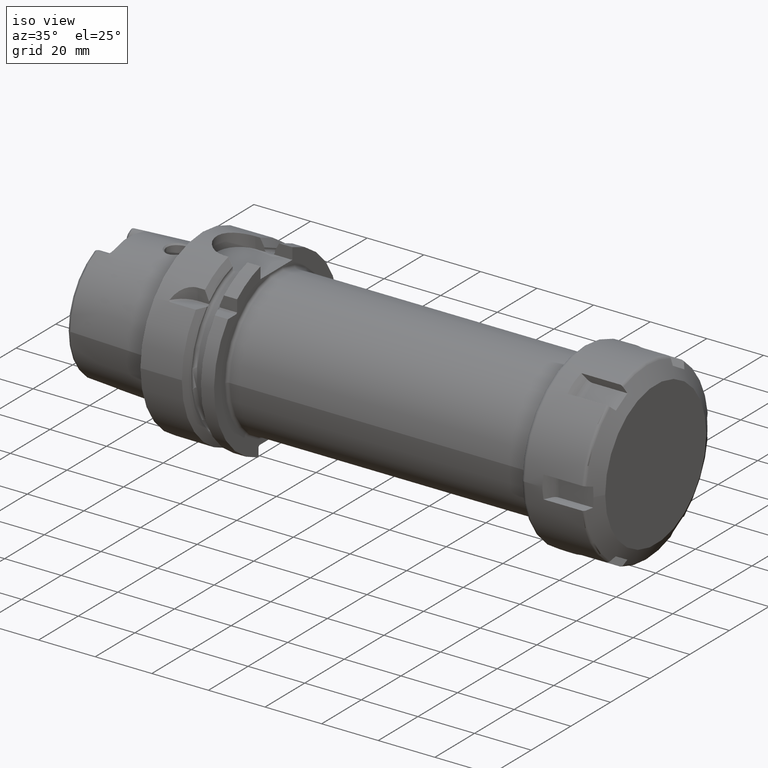
[diagram: clean part render]
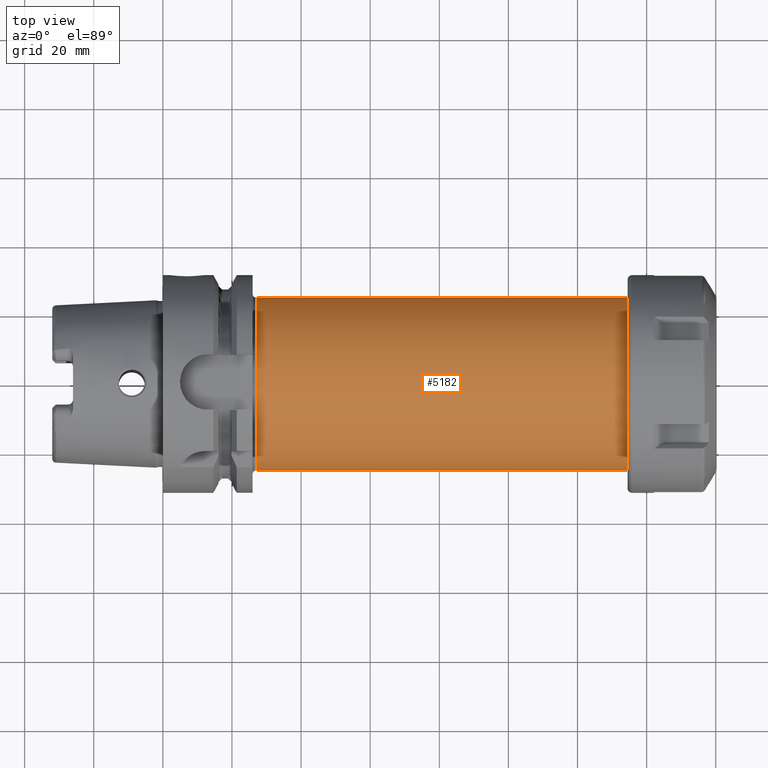
[diagram: tour spotlight — one face highlighted and labeled with its STEP entity id]
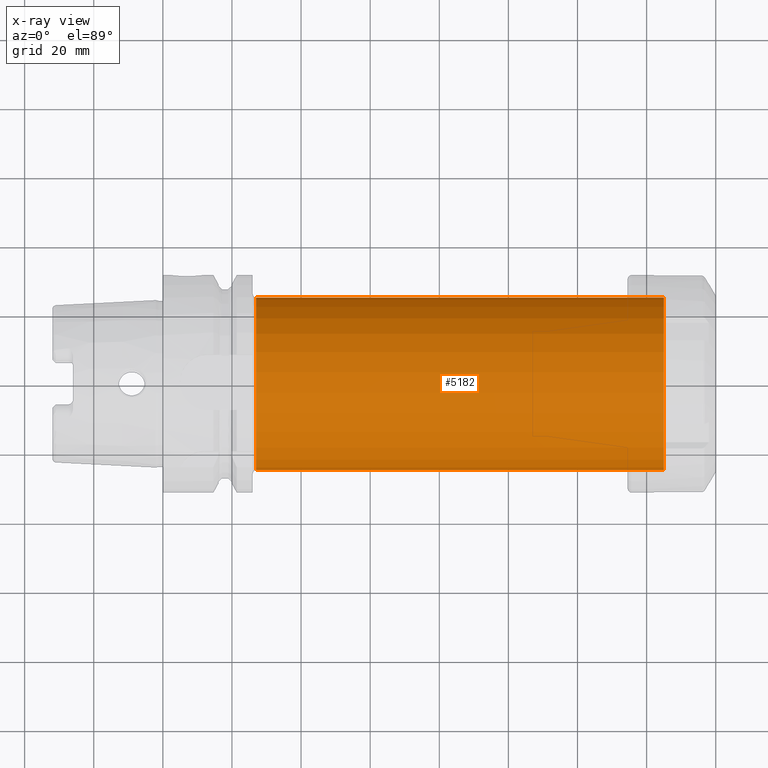
[diagram: x-ray of the same camera — body ghosted, this tour face saturated]
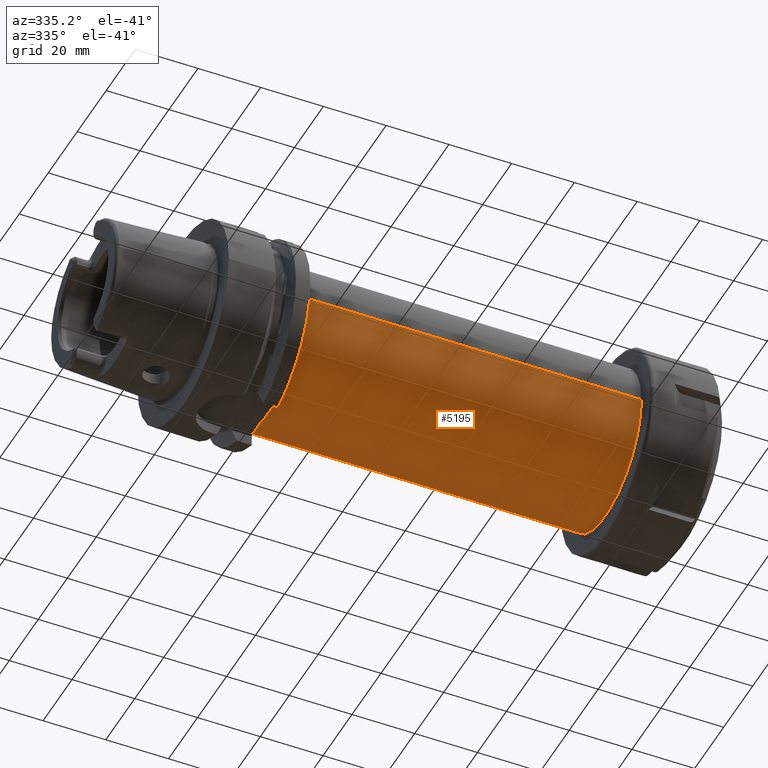
[diagram: tour spotlight — one face highlighted and labeled with its STEP entity id]
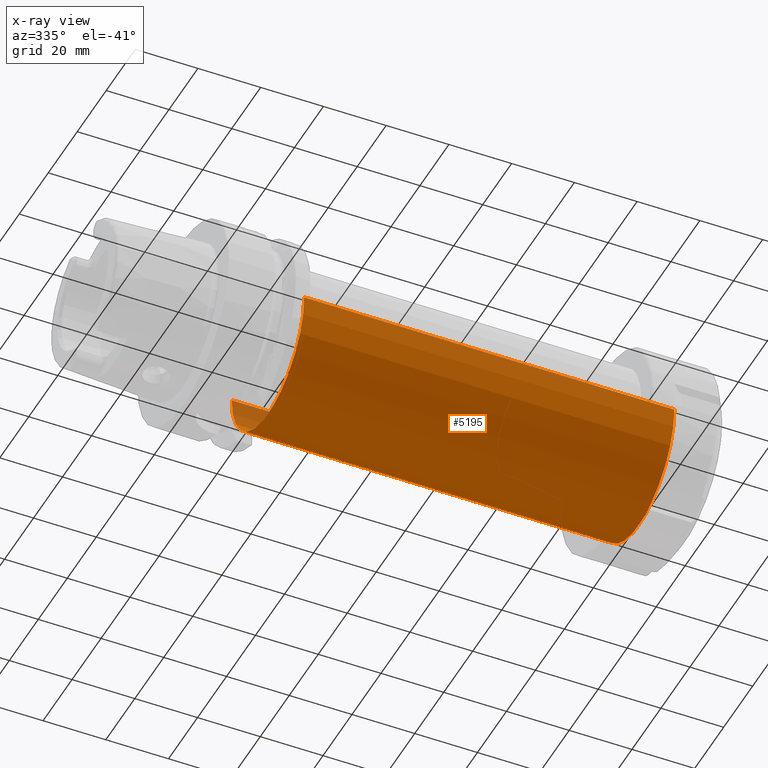
[diagram: x-ray of the same camera — body ghosted, this tour face saturated]
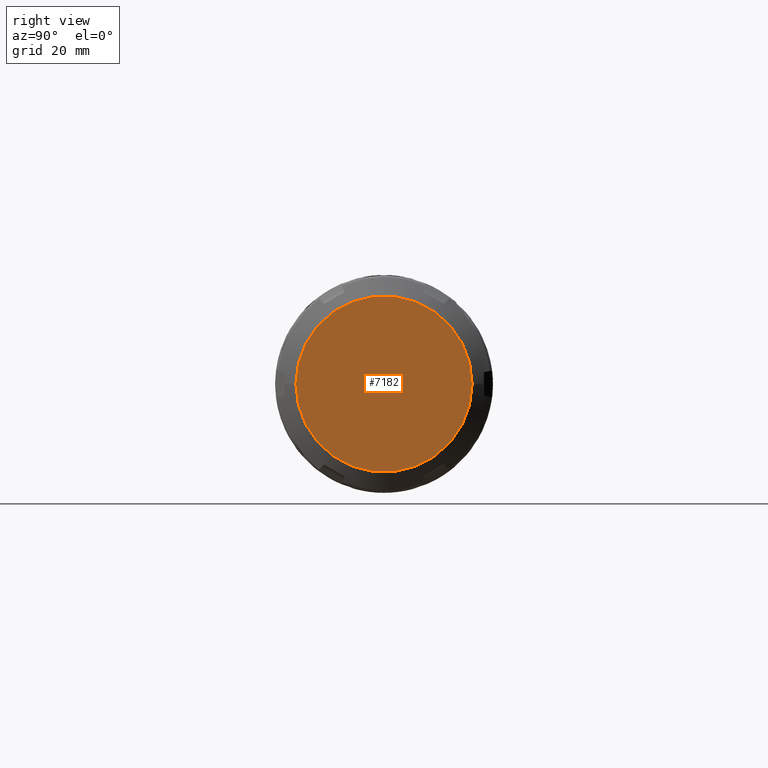
[diagram: tour spotlight — one face highlighted and labeled with its STEP entity id]
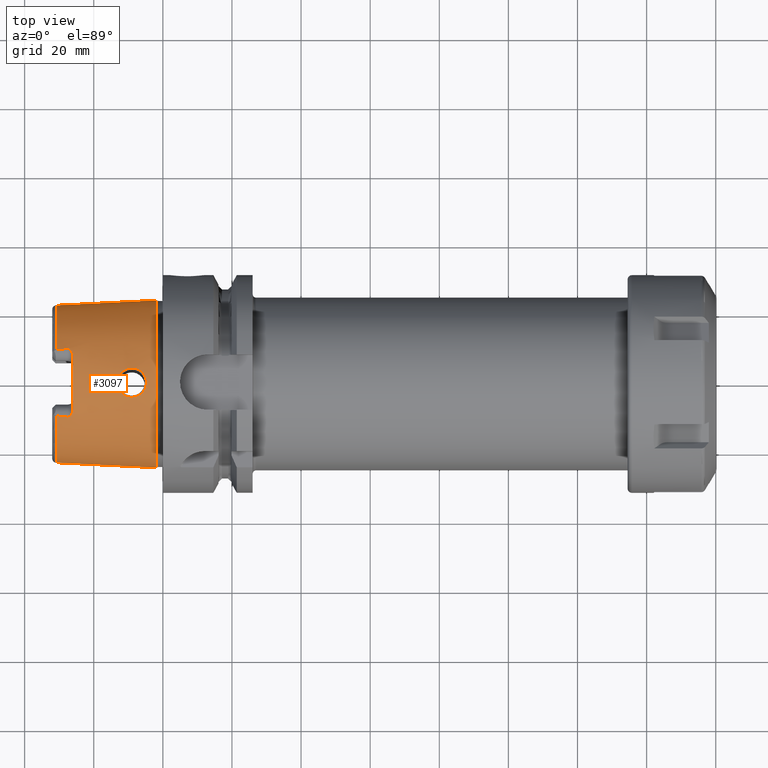
[diagram: tour spotlight — one face highlighted and labeled with its STEP entity id]
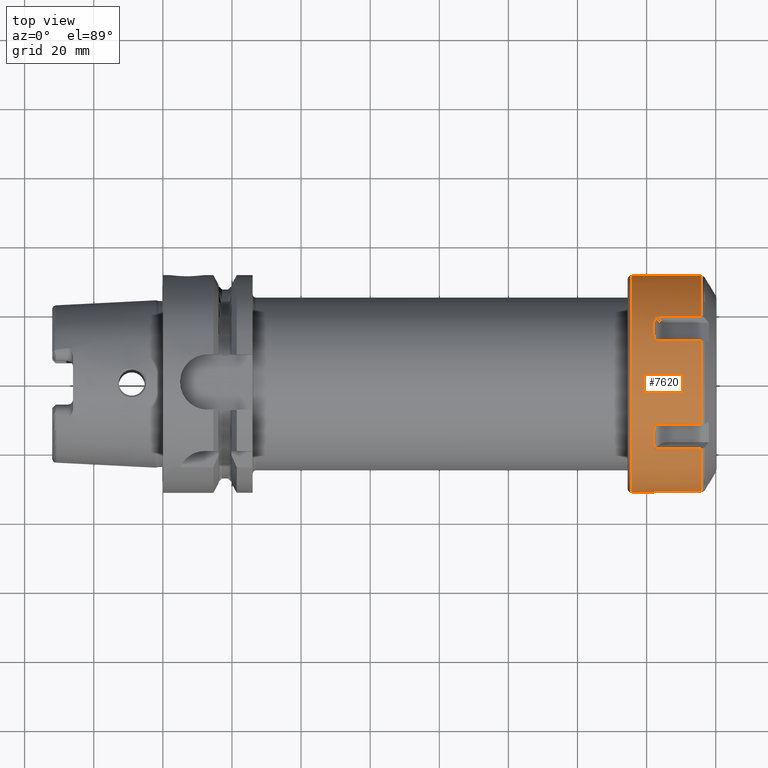
[diagram: tour spotlight — one face highlighted and labeled with its STEP entity id]
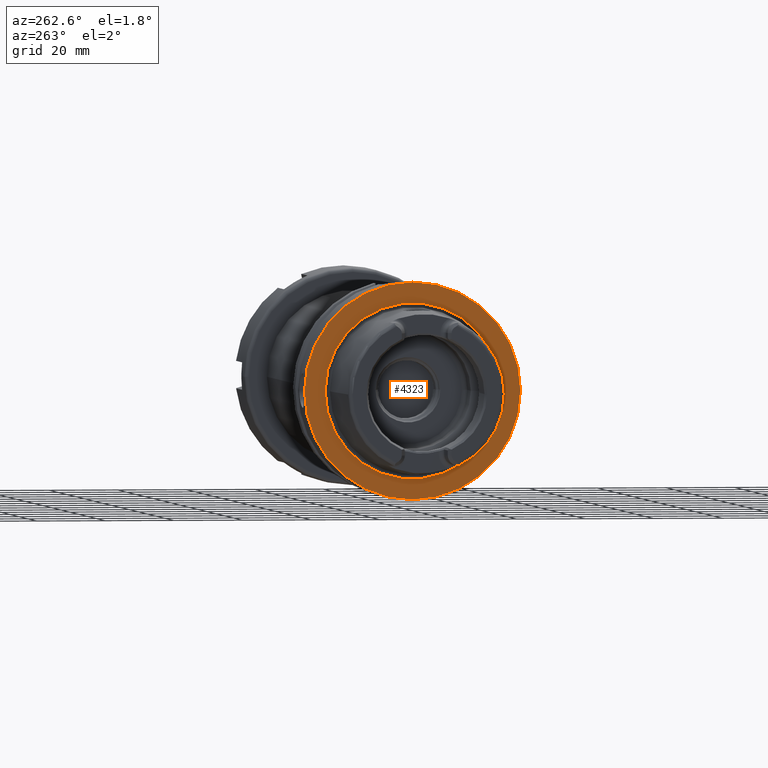
[diagram: tour spotlight — one face highlighted and labeled with its STEP entity id]
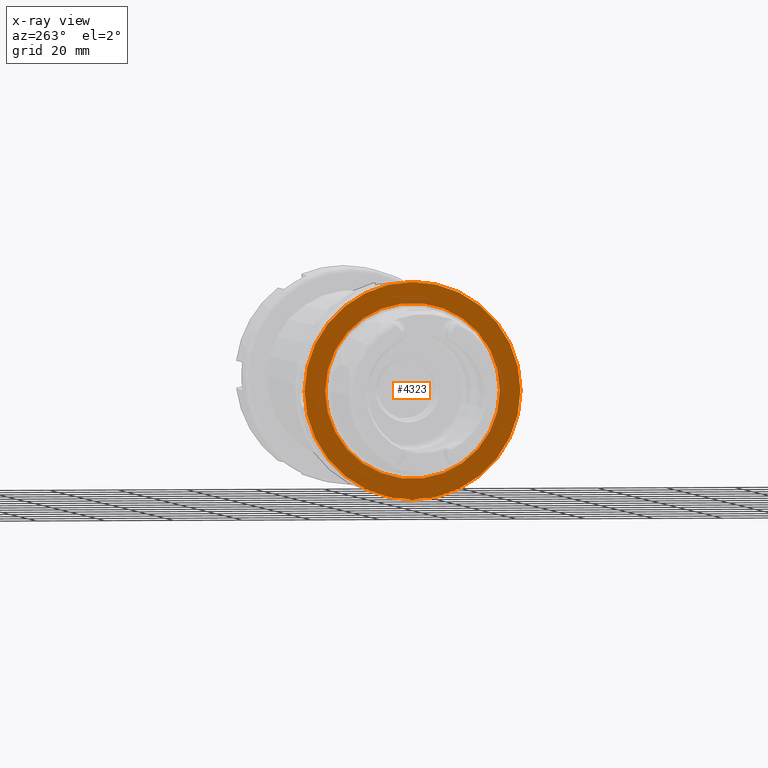
[diagram: x-ray of the same camera — body ghosted, this tour face saturated]
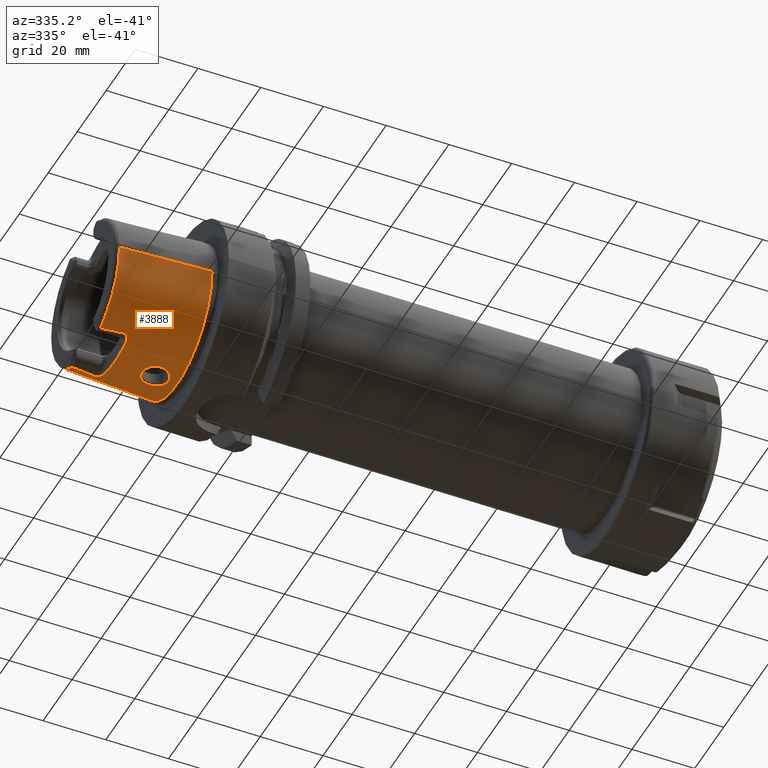
[diagram: tour spotlight — one face highlighted and labeled with its STEP entity id]
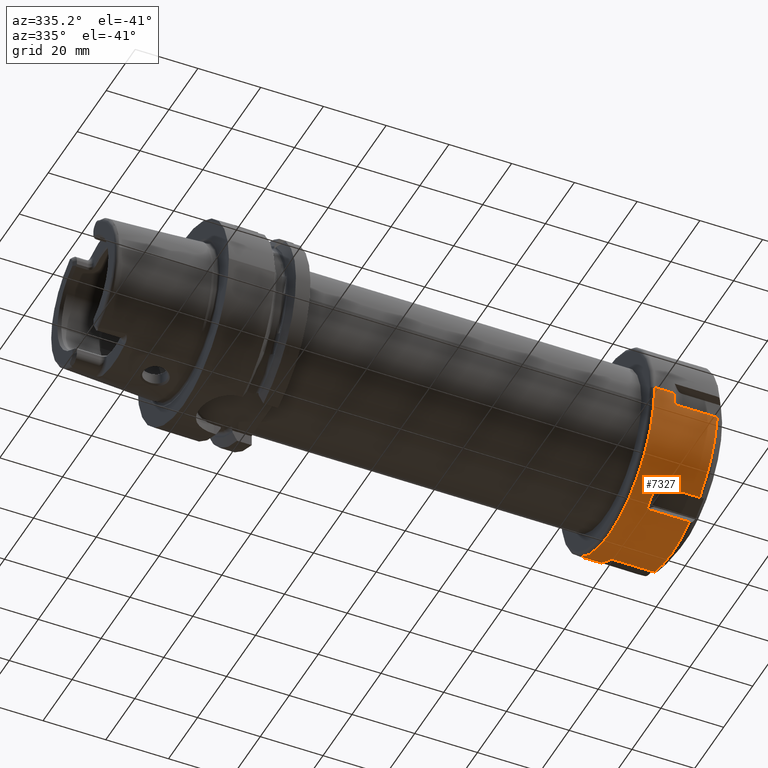
[diagram: tour spotlight — one face highlighted and labeled with its STEP entity id]
A machine part: a face-by-face anatomy tour. The part has 217 B-rep faces; the first image is the clean iso view, then the 8 largest visible faces are spotlighted one at a time (largest first), each with its STEP entity span.

Face 1 — top view, entity #5182. An x-ray twin of the same camera follows (body ghosted, this face saturated) — the face is partly hidden behind the body. In plain terms, the highlighted cylindrical surface (partial cylindrical patch) has radius 25 mm, axis along (1, 0, 0).
Definition (entity closure, byte-faithful):
#1966=CARTESIAN_POINT('',(2.7E1,0.E0,0.E0));
#1967=DIRECTION('',(1.E0,0.E0,0.E0));
#1968=DIRECTION('',(0.E0,1.E0,0.E0));
#1969=AXIS2_PLACEMENT_3D('',#1966,#1967,#1968);
#1971=CARTESIAN_POINT('',(1.45E2,0.E0,0.E0));
#1972=DIRECTION('',(1.E0,0.E0,0.E0));
#1973=DIRECTION('',(0.E0,1.E0,0.E0));
#1974=AXIS2_PLACEMENT_3D('',#1971,#1972,#1973);
#1981=DIRECTION('',(-1.E0,0.E0,0.E0));
#1982=VECTOR('',#1981,1.18E2);
#1983=CARTESIAN_POINT('',(1.45E2,-2.5E1,0.E0));
#1984=LINE('',#1983,#1982);
#1990=DIRECTION('',(-1.E0,0.E0,0.E0));
#1991=VECTOR('',#1990,1.18E2);
#1992=CARTESIAN_POINT('',(1.45E2,2.5E1,0.E0));
#1993=LINE('',#1992,#1991);
#3040=CARTESIAN_POINT('',(2.7E1,-2.5E1,0.E0));
#3041=CARTESIAN_POINT('',(2.7E1,2.5E1,0.E0));
#3042=VERTEX_POINT('',#3040);
#3043=VERTEX_POINT('',#3041);
#3044=CARTESIAN_POINT('',(1.45E2,2.5E1,0.E0));
#3045=VERTEX_POINT('',#3044);
#3046=CARTESIAN_POINT('',(1.45E2,-2.5E1,0.E0));
#3047=VERTEX_POINT('',#3046);
#5168=CARTESIAN_POINT('',(2.005E1,0.E0,0.E0));
#5169=DIRECTION('',(1.E0,0.E0,0.E0));
#5170=DIRECTION('',(0.E0,-1.E0,0.E0));
#5171=AXIS2_PLACEMENT_3D('',#5168,#5169,#5170);
#5172=CYLINDRICAL_SURFACE('',#5171,2.5E1);
#5173=ORIENTED_EDGE('',*,*,#5162,.F.);
#5175=ORIENTED_EDGE('',*,*,#5174,.F.);
#5177=ORIENTED_EDGE('',*,*,#5176,.T.);
#5179=ORIENTED_EDGE('',*,*,#5178,.T.);
#5180=EDGE_LOOP('',(#5173,#5175,#5177,#5179));
#5181=FACE_OUTER_BOUND('',#5180,.F.);
#5182=ADVANCED_FACE('',(#5181),#5172,.T.);
#1970=CIRCLE('',#1969,2.5E1);
#1975=CIRCLE('',#1974,2.5E1);
#5162=EDGE_CURVE('',#3043,#3042,#1970,.T.);
#5174=EDGE_CURVE('',#3045,#3043,#1993,.T.);
#5176=EDGE_CURVE('',#3045,#3047,#1975,.T.);
#5178=EDGE_CURVE('',#3047,#3042,#1984,.T.);

Face 2 — auxiliary view, entity #5195. An x-ray twin of the same camera follows (body ghosted, this face saturated) — the face is partly hidden behind the body. In plain terms, the highlighted cylindrical surface (partial cylindrical patch) has radius 25 mm, axis along (1, 0, 0).
Definition (entity closure, byte-faithful):
#1976=CARTESIAN_POINT('',(2.7E1,0.E0,0.E0));
#1977=DIRECTION('',(1.E0,0.E0,0.E0));
#1978=DIRECTION('',(0.E0,-1.E0,0.E0));
#1979=AXIS2_PLACEMENT_3D('',#1976,#1977,#1978);
#1981=DIRECTION('',(-1.E0,0.E0,0.E0));
#1982=VECTOR('',#1981,1.18E2);
#1983=CARTESIAN_POINT('',(1.45E2,-2.5E1,0.E0));
#1984=LINE('',#1983,#1982);
#1985=CARTESIAN_POINT('',(1.45E2,0.E0,0.E0));
#1986=DIRECTION('',(-1.E0,0.E0,0.E0));
#1987=DIRECTION('',(0.E0,1.E0,0.E0));
#1988=AXIS2_PLACEMENT_3D('',#1985,#1986,#1987);
#1990=DIRECTION('',(-1.E0,0.E0,0.E0));
#1991=VECTOR('',#1990,1.18E2);
#1992=CARTESIAN_POINT('',(1.45E2,2.5E1,0.E0));
#1993=LINE('',#1992,#1991);
#3040=CARTESIAN_POINT('',(2.7E1,-2.5E1,0.E0));
#3041=CARTESIAN_POINT('',(2.7E1,2.5E1,0.E0));
#3042=VERTEX_POINT('',#3040);
#3043=VERTEX_POINT('',#3041);
#3044=CARTESIAN_POINT('',(1.45E2,2.5E1,0.E0));
#3045=VERTEX_POINT('',#3044);
#3046=CARTESIAN_POINT('',(1.45E2,-2.5E1,0.E0));
#3047=VERTEX_POINT('',#3046);
#5183=CARTESIAN_POINT('',(2.005E1,0.E0,0.E0));
#5184=DIRECTION('',(1.E0,0.E0,0.E0));
#5185=DIRECTION('',(0.E0,-1.E0,0.E0));
#5186=AXIS2_PLACEMENT_3D('',#5183,#5184,#5185);
#5187=CYLINDRICAL_SURFACE('',#5186,2.5E1);
#5188=ORIENTED_EDGE('',*,*,#5148,.F.);
#5189=ORIENTED_EDGE('',*,*,#5178,.F.);
#5191=ORIENTED_EDGE('',*,*,#5190,.F.);
#5192=ORIENTED_EDGE('',*,*,#5174,.T.);
#5193=EDGE_LOOP('',(#5188,#5189,#5191,#5192));
#5194=FACE_OUTER_BOUND('',#5193,.F.);
#5195=ADVANCED_FACE('',(#5194),#5187,.T.);
#1980=CIRCLE('',#1979,2.5E1);
#1989=CIRCLE('',#1988,2.5E1);
#5148=EDGE_CURVE('',#3042,#3043,#1980,.T.);
#5174=EDGE_CURVE('',#3045,#3043,#1993,.T.);
#5178=EDGE_CURVE('',#3047,#3042,#1984,.T.);
#5190=EDGE_CURVE('',#3045,#3047,#1989,.T.);

Face 3 — right view, entity #7182. In plain terms, the highlighted planar face has unit normal (1, 0, 0).
Definition (entity closure, byte-faithful):
#6416=CARTESIAN_POINT('',(2.55E1,0.E0,0.E0));
#6417=DIRECTION('',(-1.E0,0.E0,0.E0));
#6418=DIRECTION('',(0.E0,1.E0,0.E0));
#6419=AXIS2_PLACEMENT_3D('',#6416,#6417,#6418);
#6776=CARTESIAN_POINT('',(2.55E1,0.E0,0.E0));
#6777=DIRECTION('',(1.E0,0.E0,0.E0));
#6778=DIRECTION('',(0.E0,1.E0,0.E0));
#6779=AXIS2_PLACEMENT_3D('',#6776,#6777,#6778);
#7059=CARTESIAN_POINT('',(2.55E1,2.55E1,0.E0));
#7060=CARTESIAN_POINT('',(2.55E1,-2.55E1,0.E0));
#7061=VERTEX_POINT('',#7059);
#7062=VERTEX_POINT('',#7060);
#7171=CARTESIAN_POINT('',(2.55E1,0.E0,0.E0));
#7172=DIRECTION('',(1.E0,0.E0,0.E0));
#7173=DIRECTION('',(0.E0,-1.E0,0.E0));
#7174=AXIS2_PLACEMENT_3D('',#7171,#7172,#7173);
#7175=PLANE('',#7174);
#7177=ORIENTED_EDGE('',*,*,#7176,.T.);
#7179=ORIENTED_EDGE('',*,*,#7178,.F.);
#7180=EDGE_LOOP('',(#7177,#7179));
#7181=FACE_OUTER_BOUND('',#7180,.F.);
#7182=ADVANCED_FACE('',(#7181),#7175,.T.);
#6420=CIRCLE('',#6419,2.55E1);
#6780=CIRCLE('',#6779,2.55E1);
#7176=EDGE_CURVE('',#7061,#7062,#6420,.T.);
#7178=EDGE_CURVE('',#7061,#7062,#6780,.T.);

Face 4 — top view, entity #3097. In plain terms, the highlighted conical surface has half-angle 2.868 deg.
Definition (entity closure, byte-faithful):
#2=CARTESIAN_POINT('',(-3.086004306431E1,-9.562027931336E0,2.067E1));
#3=CARTESIAN_POINT('',(-3.049253157278E1,-9.605880711653E0,2.067E1));
#4=CARTESIAN_POINT('',(-2.975362396220E1,-9.693552821268E0,2.067E1));
#5=CARTESIAN_POINT('',(-2.863363692789E1,-9.824971306479E0,2.067E1));
#6=CARTESIAN_POINT('',(-2.787917629619E1,-9.912538799101E0,2.067E1));
#7=CARTESIAN_POINT('',(-2.75E1,-9.956312881929E0,2.067E1));
#9=CARTESIAN_POINT('',(-2.6E1,0.E0,0.E0));
#10=DIRECTION('',(1.E0,0.E0,0.E0));
#11=DIRECTION('',(0.E0,3.233021702202E-1,9.462957818415E-1));
#12=AXIS2_PLACEMENT_3D('',#9,#10,#11);
#14=CARTESIAN_POINT('',(-2.75E1,9.956312881929E0,2.067E1));
#15=CARTESIAN_POINT('',(-2.787916500946E1,9.912540102101E0,2.067E1));
#16=CARTESIAN_POINT('',(-2.863361059702E1,9.824974374327E0,2.067E1));
#17=CARTESIAN_POINT('',(-2.975359777716E1,9.693555915617E0,2.067E1));
#18=CARTESIAN_POINT('',(-3.049252035285E1,9.605882050456E0,2.067E1));
#19=CARTESIAN_POINT('',(-3.086004306431E1,9.562027931336E0,2.067E1));
#21=CARTESIAN_POINT('',(-2.E0,0.E0,0.E0));
#22=DIRECTION('',(1.E0,0.E0,0.E0));
#23=DIRECTION('',(0.E0,1.E0,0.E0));
#24=AXIS2_PLACEMENT_3D('',#21,#22,#23);
#26=CARTESIAN_POINT('',(-1.324941786023E1,-7.219004501044E-9,2.365679941218E1));
#27=CARTESIAN_POINT('',(-1.324962652857E1,2.128419836803E-1,2.365678895818E1));
#28=CARTESIAN_POINT('',(-1.321789572653E1,6.392154004916E-1,2.365279437370E1));
#29=CARTESIAN_POINT('',(-1.306583173353E1,1.295455377947E0,2.363353567605E1));
#30=CARTESIAN_POINT('',(-1.280774848226E1,1.924363159712E0,2.360322882883E1));
#31=CARTESIAN_POINT('',(-1.245682539685E1,2.498002640667E0,2.356658532007E1));
#32=CARTESIAN_POINT('',(-1.202590717647E1,3.003748276320E0,2.352875153285E1));
#33=CARTESIAN_POINT('',(-1.151587453193E1,3.440667161266E0,2.349418467003E1));
#34=CARTESIAN_POINT('',(-1.094488701051E1,3.790928519035E0,2.346872738592E1));
#35=CARTESIAN_POINT('',(-1.032606556195E1,4.047968073685E0,2.345686676513E1));
#36=CARTESIAN_POINT('',(-9.674487886290E0,4.205448144478E0,2.346208039452E1));
#37=CARTESIAN_POINT('',(-9.005382482159E0,4.259666064034E0,2.348629251751E1));
#38=CARTESIAN_POINT('',(-8.334406518885E0,4.208654245636E0,2.352972397238E1));
#39=CARTESIAN_POINT('',(-7.678583145358E0,4.052835118832E0,2.359064506703E1));
#40=CARTESIAN_POINT('',(-7.054746219975E0,3.795297178824E0,2.366546684138E1));
#41=CARTESIAN_POINT('',(-6.478384090661E0,3.441929617339E0,2.374909717224E1));
#42=CARTESIAN_POINT('',(-5.963720829785E0,2.998888105398E0,2.383556837714E1));
#43=CARTESIAN_POINT('',(-5.531697254110E0,2.487245477785E0,2.391660020727E1));
#44=CARTESIAN_POINT('',(-5.183622696567E0,1.910877761534E0,2.398748891792E1));
#45=CARTESIAN_POINT('',(-4.930520871648E0,1.285429316774E0,2.404215083473E1));
#46=CARTESIAN_POINT('',(-4.781592632661E0,6.352567731875E-1,2.407559904029E1));
#47=CARTESIAN_POINT('',(-4.750478792548E0,2.114683342023E-1,2.408258846670E1));
#48=CARTESIAN_POINT('',(-4.750585905229E0,7.197553449570E-9,2.408258310050E1));
#50=CARTESIAN_POINT('',(-4.750585905229E0,7.197553449570E-9,2.408258310050E1));
#51=CARTESIAN_POINT('',(-4.750395627959E0,-2.105069288240E-1,2.408259263313E1));
#52=CARTESIAN_POINT('',(-4.781309836194E0,-6.330630552620E-1,2.407566909301E1));
#53=CARTESIAN_POINT('',(-4.930068182376E0,-1.284334675678E0,2.404224817580E1));
#54=CARTESIAN_POINT('',(-5.183732271360E0,-1.911208248299E0,2.398746160179E1));
#55=CARTESIAN_POINT('',(-5.531554832014E0,-2.486758661206E0,2.391664059803E1));
#56=CARTESIAN_POINT('',(-5.960736101322E0,-2.995606004120E0,2.383611484308E1));
#57=CARTESIAN_POINT('',(-6.472413726219E0,-3.437431533938E0,2.375005151539E1));
#58=CARTESIAN_POINT('',(-7.047774921505E0,-3.791791568104E0,2.366638920783E1));
#59=CARTESIAN_POINT('',(-7.671990993959E0,-4.050736119112E0,2.359134441504E1));
#60=CARTESIAN_POINT('',(-8.327799970975E0,-4.207619640495E0,2.353024681340E1));
#61=CARTESIAN_POINT('',(-8.998662135271E0,-4.259680399888E0,2.348663216787E1));
#62=CARTESIAN_POINT('',(-9.668037445633E0,-4.206488328283E0,2.346222081393E1));
#63=CARTESIAN_POINT('',(-1.031990079178E1,-4.049961979503E0,2.345683302195E1));
#64=CARTESIAN_POINT('',(-1.093870323089E1,-3.794046262990E0,2.346853209808E1));
#65=CARTESIAN_POINT('',(-1.151051650685E1,-3.444658410973E0,2.349386945058E1));
#66=CARTESIAN_POINT('',(-1.202283712979E1,-3.007012911900E0,2.352850073603E1));
#67=CARTESIAN_POINT('',(-1.245609200384E1,-2.499248587590E0,2.356650362943E1));
#68=CARTESIAN_POINT('',(-1.280745559330E1,-1.924878595842E0,2.360319856514E1));
#69=CARTESIAN_POINT('',(-1.306526541006E1,-1.297000138509E0,2.363346880977E1));
#70=CARTESIAN_POINT('',(-1.321765204718E1,-6.412116938996E-1,2.365275767433E1));
#71=CARTESIAN_POINT('',(-1.324954460014E1,-2.136894906074E-1,2.365679306269E1));
#72=CARTESIAN_POINT('',(-1.324941786023E1,-7.219004501044E-9,2.365679941218E1));
#82=CARTESIAN_POINT('',(-2.651259296226E1,-9.27E0,2.104082891384E1));
#83=CARTESIAN_POINT('',(-2.655060528934E1,-9.340723960488E0,2.100758892059E1));
#84=CARTESIAN_POINT('',(-2.663038504623E1,-9.471838743333E0,2.094458948833E1));
#85=CARTESIAN_POINT('',(-2.676092291608E1,-9.637362323001E0,2.086163997968E1));
#86=CARTESIAN_POINT('',(-2.690131837165E1,-9.770899105642E0,2.079157611E1));
#87=CARTESIAN_POINT('',(-2.705226454993E1,-9.871852756963E0,2.073538687848E1));
#88=CARTESIAN_POINT('',(-2.720441776005E1,-9.934823835429E0,2.069678496112E1));
#89=CARTESIAN_POINT('',(-2.735189841416E1,-9.963277454574E0,2.067488149845E1));
#90=CARTESIAN_POINT('',(-2.745092740764E1,-9.961978077101E0,2.067E1));
#91=CARTESIAN_POINT('',(-2.75E1,-9.956312881929E0,2.067E1));
#93=CARTESIAN_POINT('',(-2.6E1,-7.441787718571E0,2.178189005860E1));
#94=CARTESIAN_POINT('',(-2.6E1,-7.574673232080E0,2.173648969253E1));
#95=CARTESIAN_POINT('',(-2.601813511197E1,-7.850865569829E0,2.163846841914E1));
#96=CARTESIAN_POINT('',(-2.610760114915E1,-8.297034966034E0,2.146679982993E1));
#97=CARTESIAN_POINT('',(-2.626559360892E1,-8.768529603152E0,2.127027062942E1));
#98=CARTESIAN_POINT('',(-2.642147165719E1,-9.100463955368E0,2.112051021193E1));
#99=CARTESIAN_POINT('',(-2.651259296226E1,-9.27E0,2.104082891384E1));
#185=CARTESIAN_POINT('',(-3.086004306431E1,0.E0,0.E0));
#186=DIRECTION('',(1.E0,0.E0,0.E0));
#187=DIRECTION('',(0.E0,1.E0,0.E0));
#188=AXIS2_PLACEMENT_3D('',#185,#186,#187);
#196=CARTESIAN_POINT('',(-3.086004306431E1,9.562027931336E0,2.067E1));
#261=CARTESIAN_POINT('',(-3.086004306431E1,0.E0,0.E0));
#262=DIRECTION('',(1.E0,0.E0,0.E0));
#263=DIRECTION('',(0.E0,-4.198553792210E-1,9.075910205259E-1));
#264=AXIS2_PLACEMENT_3D('',#261,#262,#263);
#457=CARTESIAN_POINT('',(-2.651259296226E1,9.27E0,2.104082891384E1));
#458=CARTESIAN_POINT('',(-2.642147038701E1,9.100461592138E0,2.112051132264E1));
#459=CARTESIAN_POINT('',(-2.626559126698E1,8.768524006326E0,2.127027307791E1));
#460=CARTESIAN_POINT('',(-2.610760038346E1,8.297031203136E0,2.146680127908E1));
#461=CARTESIAN_POINT('',(-2.601813556642E1,7.850867870131E0,2.163846753656E1));
#462=CARTESIAN_POINT('',(-2.6E1,7.574674433427E0,2.173648928209E1));
#463=CARTESIAN_POINT('',(-2.6E1,7.441787718571E0,2.178189005860E1));
#497=CARTESIAN_POINT('',(-2.75E1,9.956312881929E0,2.067E1));
#498=CARTESIAN_POINT('',(-2.745017853421E1,9.962064530943E0,2.067E1));
#499=CARTESIAN_POINT('',(-2.734992708669E1,9.963297705486E0,2.067498167063E1));
#500=CARTESIAN_POINT('',(-2.719976747307E1,9.933459927686E0,2.069769932459E1));
#501=CARTESIAN_POINT('',(-2.704939607884E1,9.870085988272E0,2.073638612523E1));
#502=CARTESIAN_POINT('',(-2.690048936387E1,9.770127639355E0,2.079198258623E1));
#503=CARTESIAN_POINT('',(-2.676049508867E1,9.636879759274E0,2.086188624037E1));
#504=CARTESIAN_POINT('',(-2.663016689843E1,9.471495400784E0,2.094475592633E1));
#505=CARTESIAN_POINT('',(-2.655053916050E1,9.340600924250E0,2.100764674716E1));
#506=CARTESIAN_POINT('',(-2.651259296226E1,9.27E0,2.104082891384E1));
#763=DIRECTION('',(-9.987474205320E-1,5.003588692862E-2,0.E0));
#764=VECTOR('',#763,2.889623789861E1);
#765=CARTESIAN_POINT('',(-2.E0,-2.422042414966E1,0.E0));
#766=LINE('',#765,#764);
#772=DIRECTION('',(-9.987474205320E-1,-5.003588692862E-2,0.E0));
#773=VECTOR('',#772,2.889623789861E1);
#774=CARTESIAN_POINT('',(-2.E0,2.422042414966E1,0.E0));
#775=LINE('',#774,#773);
#2612=CARTESIAN_POINT('',(-2.E0,2.422042414966E1,0.E0));
#2613=CARTESIAN_POINT('',(-2.E0,-2.422042414966E1,0.E0));
#2614=VERTEX_POINT('',#2612);
#2615=VERTEX_POINT('',#2613);
#2616=CARTESIAN_POINT('',(-3.086004306431E1,2.277457525750E1,0.E0));
#2617=VERTEX_POINT('',#2616);
#2618=CARTESIAN_POINT('',(-3.086004306431E1,-2.277457525750E1,0.E0));
#2619=VERTEX_POINT('',#2618);
#2657=VERTEX_POINT('',#196);
#2658=CARTESIAN_POINT('',(-3.086004306431E1,-9.562027931336E0,2.067E1));
#2659=VERTEX_POINT('',#2658);
#2669=CARTESIAN_POINT('',(-2.6E1,7.441787718571E0,2.178189005860E1));
#2670=VERTEX_POINT('',#2669);
#2673=CARTESIAN_POINT('',(-2.75E1,9.956312881929E0,2.067E1));
#2674=VERTEX_POINT('',#2673);
#2675=CARTESIAN_POINT('',(-2.6E1,-7.441787718571E0,2.178189005860E1));
#2676=VERTEX_POINT('',#2675);
#2679=CARTESIAN_POINT('',(-2.75E1,-9.956312881929E0,2.067E1));
#2680=VERTEX_POINT('',#2679);
#2681=VERTEX_POINT('',#506);
#2682=VERTEX_POINT('',#82);
#2823=VERTEX_POINT('',#26);
#2824=VERTEX_POINT('',#48);
#3060=CARTESIAN_POINT('',(-1.643002153216E1,0.E0,0.E0));
#3061=DIRECTION('',(1.E0,0.E0,0.E0));
#3062=DIRECTION('',(0.E0,-1.E0,0.E0));
#3063=AXIS2_PLACEMENT_3D('',#3060,#3061,#3062);
#3064=CONICAL_SURFACE('',#3063,2.349749970358E1,2.868042729042E0);
#3066=ORIENTED_EDGE('',*,*,#3065,.T.);
#3068=ORIENTED_EDGE('',*,*,#3067,.F.);
#3070=ORIENTED_EDGE('',*,*,#3069,.F.);
#3072=ORIENTED_EDGE('',*,*,#3071,.F.);
#3074=ORIENTED_EDGE('',*,*,#3073,.F.);
#3076=ORIENTED_EDGE('',*,*,#3075,.F.);
#3078=ORIENTED_EDGE('',*,*,#3077,.T.);
#3080=ORIENTED_EDGE('',*,*,#3079,.F.);
#3082=ORIENTED_EDGE('',*,*,#3081,.F.);
#3084=ORIENTED_EDGE('',*,*,#3083,.T.);
#3086=ORIENTED_EDGE('',*,*,#3085,.T.);
#3088=ORIENTED_EDGE('',*,*,#3087,.F.);
#3089=EDGE_LOOP('',(#3066,#3068,#3070,#3072,#3074,#3076,#3078,#3080,#3082,#3084,
#3086,#3088));
#3090=FACE_OUTER_BOUND('',#3089,.F.);
#3092=ORIENTED_EDGE('',*,*,#3091,.F.);
#3094=ORIENTED_EDGE('',*,*,#3093,.F.);
#3095=EDGE_LOOP('',(#3092,#3094));
#3096=FACE_BOUND('',#3095,.F.);
#3097=ADVANCED_FACE('',(#3090,#3096),#3064,.T.);
#8=B_SPLINE_CURVE_WITH_KNOTS('',3,(#2,#3,#4,#5,#6,#7),.UNSPECIFIED.,.F.,.F.,(4,
1,1,4),(0.E0,3.333333333333E-1,6.666666666667E-1,1.E0),.UNSPECIFIED.);
#13=CIRCLE('',#12,2.301805680272E1);
#20=B_SPLINE_CURVE_WITH_KNOTS('',3,(#14,#15,#16,#17,#18,#19),.UNSPECIFIED.,.F.,
.F.,(4,1,1,4),(0.E0,3.333333333333E-1,6.666666666667E-1,1.E0),.UNSPECIFIED.);
#25=CIRCLE('',#24,2.422042414966E1);
#49=B_SPLINE_CURVE_WITH_KNOTS('',3,(#26,#27,#28,#29,#30,#31,#32,#33,#34,#35,#36,
#37,#38,#39,#40,#41,#42,#43,#44,#45,#46,#47,#48),.UNSPECIFIED.,.F.,.F.,(4,1,1,1,
1,1,1,1,1,1,1,1,1,1,1,1,1,1,1,1,4),(0.E0,5.E-2,1.E-1,1.5E-1,2.E-1,2.5E-1,3.E-1,
3.5E-1,4.E-1,4.5E-1,5.E-1,5.5E-1,6.E-1,6.5E-1,7.E-1,7.5E-1,8.E-1,8.5E-1,9.E-1,
9.5E-1,1.E0),.UNSPECIFIED.);
#73=B_SPLINE_CURVE_WITH_KNOTS('',3,(#50,#51,#52,#53,#54,#55,#56,#57,#58,#59,#60,
#61,#62,#63,#64,#65,#66,#67,#68,#69,#70,#71,#72),.UNSPECIFIED.,.F.,.F.,(4,1,1,1,
1,1,1,1,1,1,1,1,1,1,1,1,1,1,1,1,4),(0.E0,5.E-2,1.E-1,1.5E-1,2.E-1,2.5E-1,3.E-1,
3.5E-1,4.E-1,4.5E-1,5.E-1,5.5E-1,6.E-1,6.5E-1,7.E-1,7.5E-1,8.E-1,8.5E-1,9.E-1,
9.5E-1,1.E0),.UNSPECIFIED.);
#92=B_SPLINE_CURVE_WITH_KNOTS('',3,(#82,#83,#84,#85,#86,#87,#88,#89,#90,#91),
.UNSPECIFIED.,.F.,.F.,(4,1,1,1,1,1,1,4),(0.E0,1.428571428571E-1,
2.857142857143E-1,4.285714285714E-1,5.714285714286E-1,7.142857142857E-1,
8.571428571429E-1,1.E0),.UNSPECIFIED.);
#100=B_SPLINE_CURVE_WITH_KNOTS('',3,(#93,#94,#95,#96,#97,#98,#99),.UNSPECIFIED.,
.F.,.F.,(4,1,1,1,4),(0.E0,2.5E-1,5.E-1,7.5E-1,1.E0),.UNSPECIFIED.);
#189=CIRCLE('',#188,2.277457525750E1);
#265=CIRCLE('',#264,2.277457525750E1);
#464=B_SPLINE_CURVE_WITH_KNOTS('',3,(#457,#458,#459,#460,#461,#462,#463),
.UNSPECIFIED.,.F.,.F.,(4,1,1,1,4),(0.E0,2.5E-1,5.E-1,7.5E-1,1.E0),
.UNSPECIFIED.);
#507=B_SPLINE_CURVE_WITH_KNOTS('',3,(#497,#498,#499,#500,#501,#502,#503,#504,
#505,#506),.UNSPECIFIED.,.F.,.F.,(4,1,1,1,1,1,1,4),(0.E0,1.428571428571E-1,
2.857142857143E-1,4.285714285714E-1,5.714285714286E-1,7.142857142857E-1,
8.571428571429E-1,1.E0),.UNSPECIFIED.);
#3065=EDGE_CURVE('',#2659,#2680,#8,.T.);
#3067=EDGE_CURVE('',#2682,#2680,#92,.T.);
#3069=EDGE_CURVE('',#2676,#2682,#100,.T.);
#3071=EDGE_CURVE('',#2670,#2676,#13,.T.);
#3073=EDGE_CURVE('',#2681,#2670,#464,.T.);
#3075=EDGE_CURVE('',#2674,#2681,#507,.T.);
#3077=EDGE_CURVE('',#2674,#2657,#20,.T.);
#3079=EDGE_CURVE('',#2617,#2657,#189,.T.);
#3081=EDGE_CURVE('',#2614,#2617,#775,.T.);
#3083=EDGE_CURVE('',#2614,#2615,#25,.T.);
#3085=EDGE_CURVE('',#2615,#2619,#766,.T.);
#3087=EDGE_CURVE('',#2659,#2619,#265,.T.);
#3091=EDGE_CURVE('',#2823,#2824,#49,.T.);
#3093=EDGE_CURVE('',#2824,#2823,#73,.T.);

Face 5 — top view, entity #7620. In plain terms, the highlighted cylindrical surface (partial cylindrical patch) has radius 31.5 mm, axis along (1, 0, 0).
Definition (entity closure, byte-faithful):
#6494=DIRECTION('',(-1.E0,0.E0,1.226696553146E-12));
#6495=VECTOR('',#6494,6.25E0);
#6496=CARTESIAN_POINT('',(7.5E0,3.149999999997E1,3.183525763783E-14));
#6497=LINE('',#6496,#6495);
#6503=DIRECTION('',(-1.E0,0.E0,-1.230541309323E-12));
#6504=VECTOR('',#6503,6.25E0);
#6505=CARTESIAN_POINT('',(7.5E0,-3.149999999997E1,0.E0));
#6506=LINE('',#6505,#6504);
#6543=CARTESIAN_POINT('',(2.131421054840E1,1.906488828622E1,2.507548672772E1));
#6563=CARTESIAN_POINT('',(2.131421054840E1,3.124845266157E1,3.972934212316E0));
#6565=CARTESIAN_POINT('',(2.131421054840E1,-1.218356437536E1,2.904842094003E1));
#6585=CARTESIAN_POINT('',(2.131421054840E1,1.218356437536E1,2.904842094003E1));
#6587=CARTESIAN_POINT('',(2.131421054840E1,-3.124845266157E1,3.972934212316E0));
#6607=CARTESIAN_POINT('',(2.131421054840E1,-1.906488828622E1,2.507548672772E1));
#6812=CARTESIAN_POINT('',(7.5E0,-3.148999999997E1,7.936623967406E-1));
#6813=CARTESIAN_POINT('',(7.526914489918E0,-3.146308551005E1,1.861543766702E0));
#6814=CARTESIAN_POINT('',(7.607834703287E0,-3.138216529668E1,2.921239740395E0));
#6815=CARTESIAN_POINT('',(7.741547338395E0,-3.124845266157E1,3.972934212316E0));
#6831=DIRECTION('',(1.E0,0.E0,0.E0));
#6832=VECTOR('',#6831,1.357266321E1);
#6833=CARTESIAN_POINT('',(7.741547338395E0,-3.124845266157E1,3.972934212316E0));
#6834=LINE('',#6833,#6832);
#6835=CARTESIAN_POINT('',(7.5E0,0.E0,0.E0));
#6836=DIRECTION('',(1.E0,0.E0,0.E0));
#6837=DIRECTION('',(0.E0,-9.996825396825E-1,2.519563164259E-2));
#6838=AXIS2_PLACEMENT_3D('',#6835,#6836,#6837);
#6840=CARTESIAN_POINT('',(1.25E0,0.E0,0.E0));
#6841=DIRECTION('',(-1.E0,0.E0,0.E0));
#6842=DIRECTION('',(0.E0,-1.E0,0.E0));
#6843=AXIS2_PLACEMENT_3D('',#6840,#6841,#6842);
#6845=CARTESIAN_POINT('',(7.5E0,0.E0,0.E0));
#6846=DIRECTION('',(1.E0,0.E0,0.E0));
#6847=DIRECTION('',(0.E0,1.E0,0.E0));
#6848=AXIS2_PLACEMENT_3D('',#6845,#6846,#6847);
#6850=DIRECTION('',(1.E0,0.E0,0.E0));
#6851=VECTOR('',#6850,1.357266321E1);
#6852=CARTESIAN_POINT('',(7.741547338395E0,3.124845266157E1,3.972934212316E0));
#6853=LINE('',#6852,#6851);
#6854=CARTESIAN_POINT('',(2.131421054840E1,0.E0,0.E0));
#6855=DIRECTION('',(-1.E0,0.E0,0.E0));
#6856=DIRECTION('',(0.E0,6.052345487694E-1,7.960471977062E-1));
#6857=AXIS2_PLACEMENT_3D('',#6854,#6855,#6856);
#6859=DIRECTION('',(1.E0,0.E0,0.E0));
#6860=VECTOR('',#6859,1.357266321E1);
#6861=CARTESIAN_POINT('',(7.741547338395E0,1.906488828622E1,2.507548672772E1));
#6862=LINE('',#6861,#6860);
#6863=CARTESIAN_POINT('',(7.741547338395E0,1.906488828622E1,2.507548672772E1));
#6864=CARTESIAN_POINT('',(7.404800931005E0,1.693948685296E1,2.669142907526E1));
#6865=CARTESIAN_POINT('',(7.404800931005E0,1.464571221600E1,2.801574047936E1));
#6866=CARTESIAN_POINT('',(7.741547338395E0,1.218356437536E1,2.904842094003E1));
#6868=DIRECTION('',(1.E0,0.E0,0.E0));
#6869=VECTOR('',#6868,1.357266321E1);
#6870=CARTESIAN_POINT('',(7.741547338395E0,1.218356437536E1,2.904842094003E1));
#6871=LINE('',#6870,#6869);
#6872=CARTESIAN_POINT('',(2.131421054840E1,0.E0,0.E0));
#6873=DIRECTION('',(-1.E0,0.E0,0.E0));
#6874=DIRECTION('',(0.E0,-3.867798214403E-1,9.221720933354E-1));
#6875=AXIS2_PLACEMENT_3D('',#6872,#6873,#6874);
#6877=DIRECTION('',(1.E0,0.E0,0.E0));
#6878=VECTOR('',#6877,1.357266321E1);
#6879=CARTESIAN_POINT('',(7.741547338395E0,-1.218356437536E1,2.904842094003E1));
#6880=LINE('',#6879,#6878);
#6881=CARTESIAN_POINT('',(7.741547338395E0,-1.218356437536E1,2.904842094003E1));
#6882=CARTESIAN_POINT('',(7.404800931005E0,-1.464571221600E1,2.801574047936E1));
#6883=CARTESIAN_POINT('',(7.404800931005E0,-1.693948685296E1,2.669142907526E1));
#6884=CARTESIAN_POINT('',(7.741547338395E0,-1.906488828622E1,2.507548672772E1));
#6886=DIRECTION('',(1.E0,0.E0,0.E0));
#6887=VECTOR('',#6886,1.357266321E1);
#6888=CARTESIAN_POINT('',(7.741547338395E0,-1.906488828622E1,2.507548672772E1));
#6889=LINE('',#6888,#6887);
#6890=CARTESIAN_POINT('',(2.131421054840E1,0.E0,0.E0));
#6891=DIRECTION('',(-1.E0,0.E0,0.E0));
#6892=DIRECTION('',(0.E0,-9.920143702097E-1,1.261248956292E-1));
#6893=AXIS2_PLACEMENT_3D('',#6890,#6891,#6892);
#6923=CARTESIAN_POINT('',(7.741547338395E0,3.124845266157E1,3.972934212316E0));
#6924=CARTESIAN_POINT('',(7.607834703287E0,3.138216529668E1,2.921239740395E0));
#6925=CARTESIAN_POINT('',(7.526914489918E0,3.146308551005E1,1.861543766702E0));
#6926=CARTESIAN_POINT('',(7.5E0,3.148999999997E1,7.936623967410E-1));
#7067=CARTESIAN_POINT('',(1.25E0,3.149999999997E1,1.784644752757E-14));
#7068=CARTESIAN_POINT('',(1.25E0,-3.149999999997E1,-2.170408494488E-14));
#7069=VERTEX_POINT('',#7067);
#7070=VERTEX_POINT('',#7068);
#7076=VERTEX_POINT('',#6563);
#7078=CARTESIAN_POINT('',(7.5E0,3.149999999997E1,3.183525763783E-14));
#7079=VERTEX_POINT('',#7078);
#7081=CARTESIAN_POINT('',(7.5E0,3.148999999997E1,7.936623967410E-1));
#7083=VERTEX_POINT('',#7081);
#7084=CARTESIAN_POINT('',(7.741547338395E0,3.124845266157E1,3.972934212316E0));
#7085=VERTEX_POINT('',#7084);
#7093=VERTEX_POINT('',#6812);
#7094=VERTEX_POINT('',#6815);
#7101=VERTEX_POINT('',#6585);
#7102=VERTEX_POINT('',#6543);
#7103=CARTESIAN_POINT('',(7.741547338395E0,1.218356437536E1,2.904842094003E1));
#7104=VERTEX_POINT('',#7103);
#7105=CARTESIAN_POINT('',(7.741547338395E0,1.906488828622E1,2.507548672772E1));
#7106=VERTEX_POINT('',#7105);
#7116=VERTEX_POINT('',#6607);
#7117=VERTEX_POINT('',#6565);
#7118=CARTESIAN_POINT('',(7.741547338395E0,-1.906488828622E1,2.507548672772E1));
#7119=VERTEX_POINT('',#7118);
#7120=CARTESIAN_POINT('',(7.741547338395E0,-1.218356437536E1,2.904842094003E1));
#7121=VERTEX_POINT('',#7120);
#7133=VERTEX_POINT('',#6587);
#7134=CARTESIAN_POINT('',(7.5E0,-3.149999999997E1,0.E0));
#7135=VERTEX_POINT('',#7134);
#7586=CARTESIAN_POINT('',(-1.275E0,0.E0,0.E0));
#7587=DIRECTION('',(1.E0,0.E0,0.E0));
#7588=DIRECTION('',(0.E0,-1.E0,0.E0));
#7589=AXIS2_PLACEMENT_3D('',#7586,#7587,#7588);
#7590=CYLINDRICAL_SURFACE('',#7589,3.149999999997E1);
#7591=ORIENTED_EDGE('',*,*,#7535,.F.);
#7592=ORIENTED_EDGE('',*,*,#7554,.F.);
#7593=ORIENTED_EDGE('',*,*,#7581,.T.);
#7594=ORIENTED_EDGE('',*,*,#7306,.T.);
#7596=ORIENTED_EDGE('',*,*,#7595,.T.);
#7597=ORIENTED_EDGE('',*,*,#7302,.F.);
#7599=ORIENTED_EDGE('',*,*,#7598,.T.);
#7601=ORIENTED_EDGE('',*,*,#7600,.F.);
#7603=ORIENTED_EDGE('',*,*,#7602,.T.);
#7604=ORIENTED_EDGE('',*,*,#7335,.F.);
#7605=ORIENTED_EDGE('',*,*,#7425,.F.);
#7607=ORIENTED_EDGE('',*,*,#7606,.T.);
#7609=ORIENTED_EDGE('',*,*,#7608,.T.);
#7610=ORIENTED_EDGE('',*,*,#7351,.F.);
#7612=ORIENTED_EDGE('',*,*,#7611,.F.);
#7614=ORIENTED_EDGE('',*,*,#7613,.T.);
#7616=ORIENTED_EDGE('',*,*,#7615,.T.);
#7617=ORIENTED_EDGE('',*,*,#7367,.F.);
#7618=EDGE_LOOP('',(#7591,#7592,#7593,#7594,#7596,#7597,#7599,#7601,#7603,#7604,
#7605,#7607,#7609,#7610,#7612,#7614,#7616,#7617));
#7619=FACE_OUTER_BOUND('',#7618,.F.);
#7620=ADVANCED_FACE('',(#7619),#7590,.T.);
#6816=B_SPLINE_CURVE_WITH_KNOTS('',3,(#6812,#6813,#6814,#6815),.UNSPECIFIED.,
.F.,.F.,(4,4),(0.E0,1.E0),.UNSPECIFIED.);
#6839=CIRCLE('',#6838,3.149999999997E1);
#6844=CIRCLE('',#6843,3.149999999997E1);
#6849=CIRCLE('',#6848,3.149999999997E1);
#6858=CIRCLE('',#6857,3.149999999997E1);
#6867=B_SPLINE_CURVE_WITH_KNOTS('',3,(#6863,#6864,#6865,#6866),.UNSPECIFIED.,
.F.,.F.,(4,4),(0.E0,1.E0),.UNSPECIFIED.);
#6876=CIRCLE('',#6875,3.149999999997E1);
#6885=B_SPLINE_CURVE_WITH_KNOTS('',3,(#6881,#6882,#6883,#6884),.UNSPECIFIED.,
.F.,.F.,(4,4),(0.E0,1.E0),.UNSPECIFIED.);
#6894=CIRCLE('',#6893,3.149999999997E1);
#6927=B_SPLINE_CURVE_WITH_KNOTS('',3,(#6923,#6924,#6925,#6926),.UNSPECIFIED.,
.F.,.F.,(4,4),(0.E0,1.E0),.UNSPECIFIED.);
#7302=EDGE_CURVE('',#7079,#7069,#6497,.T.);
#7306=EDGE_CURVE('',#7135,#7070,#6506,.T.);
#7335=EDGE_CURVE('',#7102,#7076,#6858,.T.);
#7351=EDGE_CURVE('',#7117,#7101,#6876,.T.);
#7367=EDGE_CURVE('',#7133,#7116,#6894,.T.);
#7425=EDGE_CURVE('',#7106,#7102,#6862,.T.);
#7535=EDGE_CURVE('',#7094,#7133,#6834,.T.);
#7554=EDGE_CURVE('',#7093,#7094,#6816,.T.);
#7581=EDGE_CURVE('',#7093,#7135,#6839,.T.);
#7595=EDGE_CURVE('',#7070,#7069,#6844,.T.);
#7598=EDGE_CURVE('',#7079,#7083,#6849,.T.);
#7600=EDGE_CURVE('',#7085,#7083,#6927,.T.);
#7602=EDGE_CURVE('',#7085,#7076,#6853,.T.);
#7606=EDGE_CURVE('',#7106,#7104,#6867,.T.);
#7608=EDGE_CURVE('',#7104,#7101,#6871,.T.);
#7611=EDGE_CURVE('',#7121,#7117,#6880,.T.);
#7613=EDGE_CURVE('',#7121,#7119,#6885,.T.);
#7615=EDGE_CURVE('',#7119,#7116,#6889,.T.);

Face 6 — auxiliary view, entity #4323. An x-ray twin of the same camera follows (body ghosted, this face saturated) — the face is partly hidden behind the body. In plain terms, the highlighted planar face has unit normal (1, 0, 0).
Definition (entity closure, byte-faithful):
#1068=CARTESIAN_POINT('',(-1.421085471520E-14,0.E0,0.E0));
#1069=DIRECTION('',(1.E0,0.E0,0.E0));
#1070=DIRECTION('',(0.E0,1.E0,0.E0));
#1071=AXIS2_PLACEMENT_3D('',#1068,#1069,#1070);
#1073=CARTESIAN_POINT('',(-1.421085471520E-14,0.E0,0.E0));
#1074=DIRECTION('',(-1.E0,0.E0,0.E0));
#1075=DIRECTION('',(0.E0,1.E0,0.E0));
#1076=AXIS2_PLACEMENT_3D('',#1073,#1074,#1075);
#1078=CARTESIAN_POINT('',(0.E0,0.E0,0.E0));
#1079=DIRECTION('',(-1.E0,0.E0,0.E0));
#1080=DIRECTION('',(0.E0,-1.E0,0.E0));
#1081=AXIS2_PLACEMENT_3D('',#1078,#1079,#1080);
#1083=CARTESIAN_POINT('',(0.E0,0.E0,0.E0));
#1084=DIRECTION('',(-1.E0,0.E0,0.E0));
#1085=DIRECTION('',(0.E0,1.E0,0.E0));
#1086=AXIS2_PLACEMENT_3D('',#1083,#1084,#1085);
#2592=CARTESIAN_POINT('',(-1.421085471520E-14,3.15E1,0.E0));
#2593=CARTESIAN_POINT('',(-1.421085471520E-14,-3.15E1,0.E0));
#2594=VERTEX_POINT('',#2592);
#2595=VERTEX_POINT('',#2593);
#2620=CARTESIAN_POINT('',(0.E0,-2.549042414966E1,0.E0));
#2621=VERTEX_POINT('',#2620);
#2622=CARTESIAN_POINT('',(0.E0,2.549042414966E1,0.E0));
#2623=VERTEX_POINT('',#2622);
#4308=CARTESIAN_POINT('',(0.E0,0.E0,0.E0));
#4309=DIRECTION('',(1.E0,0.E0,0.E0));
#4310=DIRECTION('',(0.E0,-1.E0,0.E0));
#4311=AXIS2_PLACEMENT_3D('',#4308,#4309,#4310);
#4312=PLANE('',#4311);
#4314=ORIENTED_EDGE('',*,*,#4313,.T.);
#4316=ORIENTED_EDGE('',*,*,#4315,.F.);
#4317=EDGE_LOOP('',(#4314,#4316));
#4318=FACE_OUTER_BOUND('',#4317,.F.);
#4319=ORIENTED_EDGE('',*,*,#4303,.T.);
#4320=ORIENTED_EDGE('',*,*,#4287,.T.);
#4321=EDGE_LOOP('',(#4319,#4320));
#4322=FACE_BOUND('',#4321,.F.);
#4323=ADVANCED_FACE('',(#4318,#4322),#4312,.F.);
#1072=CIRCLE('',#1071,3.15E1);
#1077=CIRCLE('',#1076,3.15E1);
#1082=CIRCLE('',#1081,2.549042414966E1);
#1087=CIRCLE('',#1086,2.549042414966E1);
#4287=EDGE_CURVE('',#2623,#2621,#1087,.T.);
#4303=EDGE_CURVE('',#2621,#2623,#1082,.T.);
#4313=EDGE_CURVE('',#2594,#2595,#1072,.T.);
#4315=EDGE_CURVE('',#2594,#2595,#1077,.T.);

Face 7 — auxiliary view, entity #3888. In plain terms, the highlighted conical surface has half-angle 2.868 deg.
Definition (entity closure, byte-faithful):
#172=CARTESIAN_POINT('',(-3.086004306431E1,9.562027931336E0,-2.067E1));
#180=CARTESIAN_POINT('',(-3.086004306431E1,0.E0,0.E0));
#181=DIRECTION('',(-1.E0,0.E0,0.E0));
#182=DIRECTION('',(0.E0,1.E0,0.E0));
#183=AXIS2_PLACEMENT_3D('',#180,#181,#182);
#266=CARTESIAN_POINT('',(-3.086004306431E1,0.E0,0.E0));
#267=DIRECTION('',(-1.E0,0.E0,0.E0));
#268=DIRECTION('',(0.E0,-4.198553792210E-1,-9.075910205259E-1));
#269=AXIS2_PLACEMENT_3D('',#266,#267,#268);
#715=CARTESIAN_POINT('',(-2.35E1,-1.040978349090E1,-2.067E1));
#716=CARTESIAN_POINT('',(-2.344355022851E1,-1.041607090076E1,-2.067E1));
#717=CARTESIAN_POINT('',(-2.332956993861E1,-1.041630964332E1,
-2.067627649687E1));
#718=CARTESIAN_POINT('',(-2.315431779142E1,-1.037517685704E1,
-2.070680447798E1));
#719=CARTESIAN_POINT('',(-2.298610382819E1,-1.029332142770E1,
-2.075709446100E1));
#720=CARTESIAN_POINT('',(-2.282168004898E1,-1.016791062235E1,
-2.082809580409E1));
#721=CARTESIAN_POINT('',(-2.266724538325E1,-9.999284585470E0,
-2.091827708343E1));
#722=CARTESIAN_POINT('',(-2.252949651780E1,-9.795860386621E0,
-2.102205159226E1));
#723=CARTESIAN_POINT('',(-2.240609239614E1,-9.556317791147E0,
-2.113897791639E1));
#724=CARTESIAN_POINT('',(-2.233295118151E1,-9.369771312934E0,
-2.122596447282E1));
#725=CARTESIAN_POINT('',(-2.229902715702E1,-9.27E0,-2.127129858661E1));
#732=CARTESIAN_POINT('',(-2.229902715702E1,-9.27E0,-2.127129858661E1));
#733=CARTESIAN_POINT('',(-2.223399395074E1,-9.078735889296E0,
-2.135820522042E1));
#734=CARTESIAN_POINT('',(-2.212138063131E1,-8.709703982970E0,
-2.151897497246E1));
#735=CARTESIAN_POINT('',(-2.202143095510E1,-8.195867731278E0,
-2.172483116732E1));
#736=CARTESIAN_POINT('',(-2.2E1,-7.876905772307E0,-2.184209600703E1));
#737=CARTESIAN_POINT('',(-2.2E1,-7.723914364163E0,-2.189606426911E1));
#744=CARTESIAN_POINT('',(-3.086004306431E1,9.562027931336E0,-2.067E1));
#745=CARTESIAN_POINT('',(-3.006933576531E1,9.656377942908E0,-2.067E1));
#746=CARTESIAN_POINT('',(-2.846987211493E1,9.844931102331E0,-2.067E1));
#747=CARTESIAN_POINT('',(-2.601704943476E1,1.012739619931E1,-2.067E1));
#748=CARTESIAN_POINT('',(-2.434508424921E1,1.031565749353E1,-2.067E1));
#749=CARTESIAN_POINT('',(-2.35E1,1.040978349090E1,-2.067E1));
#751=CARTESIAN_POINT('',(-2.2E1,0.E0,0.E0));
#752=DIRECTION('',(1.E0,0.E0,0.E0));
#753=DIRECTION('',(0.E0,-3.326627708379E-1,-9.430458530201E-1));
#754=AXIS2_PLACEMENT_3D('',#751,#752,#753);
#756=CARTESIAN_POINT('',(-2.35E1,-1.040978349090E1,-2.067E1));
#757=CARTESIAN_POINT('',(-2.434499363207E1,-1.031566758652E1,-2.067E1));
#758=CARTESIAN_POINT('',(-2.601683809497E1,-1.012742018211E1,-2.067E1));
#759=CARTESIAN_POINT('',(-2.846966522954E1,-9.844955281726E0,-2.067E1));
#760=CARTESIAN_POINT('',(-3.006924714753E1,-9.656388517097E0,-2.067E1));
#761=CARTESIAN_POINT('',(-3.086004306431E1,-9.562027931336E0,-2.067E1));
#763=DIRECTION('',(-9.987474205320E-1,5.003588692862E-2,0.E0));
#764=VECTOR('',#763,2.889623789861E1);
#765=CARTESIAN_POINT('',(-2.E0,-2.422042414966E1,0.E0));
#766=LINE('',#765,#764);
#767=CARTESIAN_POINT('',(-2.E0,0.E0,0.E0));
#768=DIRECTION('',(1.E0,0.E0,0.E0));
#769=DIRECTION('',(0.E0,-1.E0,0.E0));
#770=AXIS2_PLACEMENT_3D('',#767,#768,#769);
#772=DIRECTION('',(-9.987474205320E-1,-5.003588692862E-2,0.E0));
#773=VECTOR('',#772,2.889623789861E1);
#774=CARTESIAN_POINT('',(-2.E0,2.422042414966E1,0.E0));
#775=LINE('',#774,#773);
#776=CARTESIAN_POINT('',(-4.750586214018E0,5.673461659763E-9,
-2.408258339423E1));
#777=CARTESIAN_POINT('',(-4.750477437961E0,2.111411076152E-1,
-2.408258884376E1));
#778=CARTESIAN_POINT('',(-4.781495656806E0,6.343409338442E-1,
-2.407562144168E1));
#779=CARTESIAN_POINT('',(-4.930078657106E0,1.283914855647E0,-2.404224907910E1));
#780=CARTESIAN_POINT('',(-5.182634392381E0,1.908800454949E0,-2.398769888200E1));
#781=CARTESIAN_POINT('',(-5.529831450162E0,2.484539069761E0,-2.391697022480E1));
#782=CARTESIAN_POINT('',(-5.960551469368E0,2.995586150016E0,-2.383614077825E1));
#783=CARTESIAN_POINT('',(-6.473793439058E0,3.438507792172E0,-2.374982588457E1));
#784=CARTESIAN_POINT('',(-7.048787066123E0,3.792204015972E0,-2.366626747645E1));
#785=CARTESIAN_POINT('',(-7.671452269175E0,4.050490920343E0,-2.359141310307E1));
#786=CARTESIAN_POINT('',(-8.326498075054E0,4.207389863949E0,-2.353035449331E1));
#787=CARTESIAN_POINT('',(-8.996688113385E0,4.259622037115E0,-2.348674331493E1));
#788=CARTESIAN_POINT('',(-9.664449704733E0,4.206963769363E0,-2.346231724919E1));
#789=CARTESIAN_POINT('',(-1.031524077611E1,4.051442761029E0,-2.345681057565E1));
#790=CARTESIAN_POINT('',(-1.093485325951E1,3.796098039719E0,-2.346839797168E1));
#791=CARTESIAN_POINT('',(-1.150677686976E1,3.447081430360E0,-2.349368587605E1));
#792=CARTESIAN_POINT('',(-1.201610511114E1,3.013688514077E0,-2.352797212386E1));
#793=CARTESIAN_POINT('',(-1.245275273991E1,2.504280742997E0,-2.356616658718E1));
#794=CARTESIAN_POINT('',(-1.280634613041E1,1.927107192660E0,-2.360307496745E1));
#795=CARTESIAN_POINT('',(-1.306351718265E1,1.301776136825E0,-2.363325793045E1));
#796=CARTESIAN_POINT('',(-1.321667495617E1,6.483699009348E-1,
-2.365261938940E1));
#797=CARTESIAN_POINT('',(-1.324953338827E1,2.167159282651E-1,
-2.365680321669E1));
#798=CARTESIAN_POINT('',(-1.324940828071E1,6.149879737228E-9,
-2.365680948441E1));
#800=CARTESIAN_POINT('',(-1.324940828071E1,6.149879737228E-9,
-2.365680948441E1));
#801=CARTESIAN_POINT('',(-1.324953102801E1,-2.137481481882E-1,
-2.365680333493E1));
#802=CARTESIAN_POINT('',(-1.321763433537E1,-6.412975014817E-1,
-2.365274945467E1));
#803=CARTESIAN_POINT('',(-1.306535183772E1,-1.296633810944E0,
-2.363348136753E1));
#804=CARTESIAN_POINT('',(-1.280777805154E1,-1.924231879999E0,
-2.360323471178E1));
#805=CARTESIAN_POINT('',(-1.245640925213E1,-2.498853587660E0,
-2.356653312143E1));
#806=CARTESIAN_POINT('',(-1.202279775894E1,-3.007095564138E0,
-2.352849478770E1));
#807=CARTESIAN_POINT('',(-1.151012912941E1,-3.444950000041E0,
-2.349384632376E1));
#808=CARTESIAN_POINT('',(-1.093833543731E1,-3.794219313343E0,
-2.346852201482E1));
#809=CARTESIAN_POINT('',(-1.031975853695E1,-4.049996047184E0,
-2.345683414568E1));
#810=CARTESIAN_POINT('',(-9.668027880621E0,-4.206485188960E0,
-2.346222186835E1));
#811=CARTESIAN_POINT('',(-8.998732245580E0,-4.259676561364E0,
-2.348662929012E1));
#812=CARTESIAN_POINT('',(-8.327946517995E0,-4.207637743620E0,
-2.353023608986E1));
#813=CARTESIAN_POINT('',(-7.672280726344E0,-4.050816496641E0,
-2.359131552533E1));
#814=CARTESIAN_POINT('',(-7.048298445734E0,-3.792045808672E0,
-2.366632099982E1));
#815=CARTESIAN_POINT('',(-6.472887987830E0,-3.437795786313E0,
-2.374997505426E1));
#816=CARTESIAN_POINT('',(-5.960766318899E0,-2.995689730409E0,
-2.383610614678E1));
#817=CARTESIAN_POINT('',(-5.531187494687E0,-2.486290041474E0,
-2.391671147691E1));
#818=CARTESIAN_POINT('',(-5.183401261358E0,-1.910526594455E0,
-2.398753185570E1));
#819=CARTESIAN_POINT('',(-4.929997199649E0,-1.284003067748E0,
-2.404226458263E1));
#820=CARTESIAN_POINT('',(-4.781340780308E0,-6.332209723674E-1,
-2.407566103624E1));
#821=CARTESIAN_POINT('',(-4.750402434471E0,-2.105981632370E-1,
-2.408259260134E1));
#822=CARTESIAN_POINT('',(-4.750586214018E0,5.673461659763E-9,
-2.408258339423E1));
#832=CARTESIAN_POINT('',(-2.229902715702E1,9.27E0,-2.127129858661E1));
#833=CARTESIAN_POINT('',(-2.233311157770E1,9.370243041714E0,-2.122575012858E1));
#834=CARTESIAN_POINT('',(-2.240658425841E1,9.557497215840E0,-2.113842140416E1));
#835=CARTESIAN_POINT('',(-2.253041527230E1,9.797438074146E0,-2.102126542838E1));
#836=CARTESIAN_POINT('',(-2.266830373788E1,1.000064778809E1,-2.091756656395E1));
#837=CARTESIAN_POINT('',(-2.282373330426E1,1.017005110462E1,-2.082694270310E1));
#838=CARTESIAN_POINT('',(-2.299261366970E1,1.029790438197E1,-2.075446014923E1));
#839=CARTESIAN_POINT('',(-2.316533457542E1,1.037882348161E1,-2.070435505978E1));
#840=CARTESIAN_POINT('',(-2.333269177476E1,1.041609135758E1,-2.067621009348E1));
#841=CARTESIAN_POINT('',(-2.344467268621E1,1.041594588074E1,-2.067E1));
#842=CARTESIAN_POINT('',(-2.35E1,1.040978349090E1,-2.067E1));
#844=CARTESIAN_POINT('',(-2.2E1,7.723914364163E0,-2.189606426911E1));
#845=CARTESIAN_POINT('',(-2.2E1,7.876901135824E0,-2.184209764257E1));
#846=CARTESIAN_POINT('',(-2.202143124879E1,8.195856320393E0,-2.172483505793E1));
#847=CARTESIAN_POINT('',(-2.212136508173E1,8.709641843939E0,-2.151900085185E1));
#848=CARTESIAN_POINT('',(-2.223398514363E1,9.078709987396E0,-2.135821698973E1));
#849=CARTESIAN_POINT('',(-2.229902715702E1,9.27E0,-2.127129858661E1));
#2612=CARTESIAN_POINT('',(-2.E0,2.422042414966E1,0.E0));
#2613=CARTESIAN_POINT('',(-2.E0,-2.422042414966E1,0.E0));
#2614=VERTEX_POINT('',#2612);
#2615=VERTEX_POINT('',#2613);
#2616=CARTESIAN_POINT('',(-3.086004306431E1,2.277457525750E1,0.E0));
#2617=VERTEX_POINT('',#2616);
#2618=CARTESIAN_POINT('',(-3.086004306431E1,-2.277457525750E1,0.E0));
#2619=VERTEX_POINT('',#2618);
#2737=VERTEX_POINT('',#172);
#2739=CARTESIAN_POINT('',(-3.086004306431E1,-9.562027931336E0,-2.067E1));
#2740=VERTEX_POINT('',#2739);
#2743=CARTESIAN_POINT('',(-2.229902715702E1,-9.27E0,-2.127129858661E1));
#2745=VERTEX_POINT('',#2743);
#2746=VERTEX_POINT('',#737);
#2747=VERTEX_POINT('',#844);
#2748=VERTEX_POINT('',#849);
#2759=CARTESIAN_POINT('',(-2.35E1,-1.040978349090E1,-2.067E1));
#2760=VERTEX_POINT('',#2759);
#2761=CARTESIAN_POINT('',(-2.35E1,1.040978349090E1,-2.067E1));
#2762=VERTEX_POINT('',#2761);
#2827=VERTEX_POINT('',#776);
#2828=VERTEX_POINT('',#798);
#3858=CARTESIAN_POINT('',(-1.643002153216E1,0.E0,0.E0));
#3859=DIRECTION('',(1.E0,0.E0,0.E0));
#3860=DIRECTION('',(0.E0,-1.E0,0.E0));
#3861=AXIS2_PLACEMENT_3D('',#3858,#3859,#3860);
#3862=CONICAL_SURFACE('',#3861,2.349749970358E1,2.868042729042E0);
#3864=ORIENTED_EDGE('',*,*,#3863,.T.);
#3866=ORIENTED_EDGE('',*,*,#3865,.F.);
#3868=ORIENTED_EDGE('',*,*,#3867,.F.);
#3870=ORIENTED_EDGE('',*,*,#3869,.F.);
#3871=ORIENTED_EDGE('',*,*,#3848,.F.);
#3872=ORIENTED_EDGE('',*,*,#3837,.F.);
#3873=ORIENTED_EDGE('',*,*,#3824,.T.);
#3874=ORIENTED_EDGE('',*,*,#3227,.T.);
#3875=ORIENTED_EDGE('',*,*,#3085,.F.);
#3877=ORIENTED_EDGE('',*,*,#3876,.T.);
#3878=ORIENTED_EDGE('',*,*,#3081,.T.);
#3879=ORIENTED_EDGE('',*,*,#3199,.T.);
#3880=EDGE_LOOP('',(#3864,#3866,#3868,#3870,#3871,#3872,#3873,#3874,#3875,#3877,
#3878,#3879));
#3881=FACE_OUTER_BOUND('',#3880,.F.);
#3883=ORIENTED_EDGE('',*,*,#3882,.F.);
#3885=ORIENTED_EDGE('',*,*,#3884,.F.);
#3886=EDGE_LOOP('',(#3883,#3885));
#3887=FACE_BOUND('',#3886,.F.);
#3888=ADVANCED_FACE('',(#3881,#3887),#3862,.T.);
#184=CIRCLE('',#183,2.277457525750E1);
#270=CIRCLE('',#269,2.277457525750E1);
#726=B_SPLINE_CURVE_WITH_KNOTS('',3,(#715,#716,#717,#718,#719,#720,#721,#722,
#723,#724,#725),.UNSPECIFIED.,.F.,.F.,(4,1,1,1,1,1,1,1,4),(0.E0,1.25E-1,2.5E-1,
3.75E-1,5.E-1,6.25E-1,7.5E-1,8.75E-1,1.E0),.UNSPECIFIED.);
#738=B_SPLINE_CURVE_WITH_KNOTS('',3,(#732,#733,#734,#735,#736,#737),
.UNSPECIFIED.,.F.,.F.,(4,1,1,4),(0.E0,3.333333333333E-1,6.666666666667E-1,1.E0),
.UNSPECIFIED.);
#750=B_SPLINE_CURVE_WITH_KNOTS('',3,(#744,#745,#746,#747,#748,#749),
.UNSPECIFIED.,.F.,.F.,(4,1,1,4),(0.E0,3.333333333333E-1,6.666666666667E-1,1.E0),
.UNSPECIFIED.);
#755=CIRCLE('',#754,2.321845136054E1);
#762=B_SPLINE_CURVE_WITH_KNOTS('',3,(#756,#757,#758,#759,#760,#761),
.UNSPECIFIED.,.F.,.F.,(4,1,1,4),(0.E0,3.333333333333E-1,6.666666666667E-1,1.E0),
.UNSPECIFIED.);
#771=CIRCLE('',#770,2.422042414966E1);
#799=B_SPLINE_CURVE_WITH_KNOTS('',3,(#776,#777,#778,#779,#780,#781,#782,#783,
#784,#785,#786,#787,#788,#789,#790,#791,#792,#793,#794,#795,#796,#797,#798),
.UNSPECIFIED.,.F.,.F.,(4,1,1,1,1,1,1,1,1,1,1,1,1,1,1,1,1,1,1,1,4),(0.E0,5.E-2,
1.E-1,1.5E-1,2.E-1,2.5E-1,3.E-1,3.5E-1,4.E-1,4.5E-1,5.E-1,5.5E-1,6.E-1,6.5E-1,
7.E-1,7.5E-1,8.E-1,8.5E-1,9.E-1,9.5E-1,1.E0),.UNSPECIFIED.);
#823=B_SPLINE_CURVE_WITH_KNOTS('',3,(#800,#801,#802,#803,#804,#805,#806,#807,
#808,#809,#810,#811,#812,#813,#814,#815,#816,#817,#818,#819,#820,#821,#822),
.UNSPECIFIED.,.F.,.F.,(4,1,1,1,1,1,1,1,1,1,1,1,1,1,1,1,1,1,1,1,4),(0.E0,5.E-2,
1.E-1,1.5E-1,2.E-1,2.5E-1,3.E-1,3.5E-1,4.E-1,4.5E-1,5.E-1,5.5E-1,6.E-1,6.5E-1,
7.E-1,7.5E-1,8.E-1,8.5E-1,9.E-1,9.5E-1,1.E0),.UNSPECIFIED.);
#843=B_SPLINE_CURVE_WITH_KNOTS('',3,(#832,#833,#834,#835,#836,#837,#838,#839,
#840,#841,#842),.UNSPECIFIED.,.F.,.F.,(4,1,1,1,1,1,1,1,4),(0.E0,1.25E-1,2.5E-1,
3.75E-1,5.E-1,6.25E-1,7.5E-1,8.75E-1,1.E0),.UNSPECIFIED.);
#850=B_SPLINE_CURVE_WITH_KNOTS('',3,(#844,#845,#846,#847,#848,#849),
.UNSPECIFIED.,.F.,.F.,(4,1,1,4),(0.E0,3.333333333333E-1,6.666666666667E-1,1.E0),
.UNSPECIFIED.);
#3081=EDGE_CURVE('',#2614,#2617,#775,.T.);
#3085=EDGE_CURVE('',#2615,#2619,#766,.T.);
#3199=EDGE_CURVE('',#2617,#2737,#184,.T.);
#3227=EDGE_CURVE('',#2740,#2619,#270,.T.);
#3824=EDGE_CURVE('',#2760,#2740,#762,.T.);
#3837=EDGE_CURVE('',#2760,#2745,#726,.T.);
#3848=EDGE_CURVE('',#2745,#2746,#738,.T.);
#3863=EDGE_CURVE('',#2737,#2762,#750,.T.);
#3865=EDGE_CURVE('',#2748,#2762,#843,.T.);
#3867=EDGE_CURVE('',#2747,#2748,#850,.T.);
#3869=EDGE_CURVE('',#2746,#2747,#755,.T.);
#3876=EDGE_CURVE('',#2615,#2614,#771,.T.);
#3882=EDGE_CURVE('',#2827,#2828,#799,.T.);
#3884=EDGE_CURVE('',#2828,#2827,#823,.T.);

Face 8 — auxiliary view, entity #7327. In plain terms, the highlighted cylindrical surface (partial cylindrical patch) has radius 31.5 mm, axis along (1, 0, 0).
Definition (entity closure, byte-faithful):
#6471=CARTESIAN_POINT('',(7.741547338395E0,1.218356437536E1,-2.904842094003E1));
#6472=CARTESIAN_POINT('',(7.404800931005E0,1.464571221600E1,-2.801574047936E1));
#6473=CARTESIAN_POINT('',(7.404800931005E0,1.693948685296E1,-2.669142907526E1));
#6474=CARTESIAN_POINT('',(7.741547338395E0,1.906488828622E1,-2.507548672772E1));
#6476=DIRECTION('',(1.E0,0.E0,0.E0));
#6477=VECTOR('',#6476,1.357266321E1);
#6478=CARTESIAN_POINT('',(7.741547338395E0,1.906488828622E1,-2.507548672772E1));
#6479=LINE('',#6478,#6477);
#6480=CARTESIAN_POINT('',(2.131421054840E1,0.E0,0.E0));
#6481=DIRECTION('',(-1.E0,0.E0,0.E0));
#6482=DIRECTION('',(0.E0,9.920143702097E-1,-1.261248956292E-1));
#6483=AXIS2_PLACEMENT_3D('',#6480,#6481,#6482);
#6485=DIRECTION('',(1.E0,0.E0,0.E0));
#6486=VECTOR('',#6485,1.357266321E1);
#6487=CARTESIAN_POINT('',(7.741547338395E0,3.124845266157E1,-3.972934212316E0));
#6488=LINE('',#6487,#6486);
#6489=CARTESIAN_POINT('',(7.5E0,0.E0,0.E0));
#6490=DIRECTION('',(1.E0,0.E0,0.E0));
#6491=DIRECTION('',(0.E0,9.996825396825E-1,-2.519563164260E-2));
#6492=AXIS2_PLACEMENT_3D('',#6489,#6490,#6491);
#6494=DIRECTION('',(-1.E0,0.E0,1.226696553146E-12));
#6495=VECTOR('',#6494,6.25E0);
#6496=CARTESIAN_POINT('',(7.5E0,3.149999999997E1,3.183525763783E-14));
#6497=LINE('',#6496,#6495);
#6498=CARTESIAN_POINT('',(1.25E0,0.E0,0.E0));
#6499=DIRECTION('',(-1.E0,0.E0,0.E0));
#6500=DIRECTION('',(0.E0,1.E0,0.E0));
#6501=AXIS2_PLACEMENT_3D('',#6498,#6499,#6500);
#6503=DIRECTION('',(-1.E0,0.E0,-1.230541309323E-12));
#6504=VECTOR('',#6503,6.25E0);
#6505=CARTESIAN_POINT('',(7.5E0,-3.149999999997E1,0.E0));
#6506=LINE('',#6505,#6504);
#6507=CARTESIAN_POINT('',(7.5E0,0.E0,0.E0));
#6508=DIRECTION('',(1.E0,0.E0,0.E0));
#6509=DIRECTION('',(0.E0,-1.E0,0.E0));
#6510=AXIS2_PLACEMENT_3D('',#6507,#6508,#6509);
#6512=DIRECTION('',(1.E0,0.E0,0.E0));
#6513=VECTOR('',#6512,1.357266321E1);
#6514=CARTESIAN_POINT('',(7.741547338395E0,-3.124845266157E1,
-3.972934212316E0));
#6515=LINE('',#6514,#6513);
#6516=CARTESIAN_POINT('',(2.131421054840E1,0.E0,0.E0));
#6517=DIRECTION('',(-1.E0,0.E0,0.E0));
#6518=DIRECTION('',(0.E0,-6.052345487694E-1,-7.960471977062E-1));
#6519=AXIS2_PLACEMENT_3D('',#6516,#6517,#6518);
#6521=DIRECTION('',(1.E0,0.E0,0.E0));
#6522=VECTOR('',#6521,1.357266321E1);
#6523=CARTESIAN_POINT('',(7.741547338395E0,-1.906488828622E1,
-2.507548672772E1));
#6524=LINE('',#6523,#6522);
#6525=CARTESIAN_POINT('',(7.741547338395E0,-1.906488828622E1,
-2.507548672772E1));
#6526=CARTESIAN_POINT('',(7.404800931005E0,-1.693948685296E1,
-2.669142907526E1));
#6527=CARTESIAN_POINT('',(7.404800931005E0,-1.464571221600E1,
-2.801574047936E1));
#6528=CARTESIAN_POINT('',(7.741547338395E0,-1.218356437536E1,
-2.904842094003E1));
#6530=DIRECTION('',(1.E0,0.E0,0.E0));
#6531=VECTOR('',#6530,1.357266321E1);
#6532=CARTESIAN_POINT('',(7.741547338395E0,-1.218356437536E1,
-2.904842094003E1));
#6533=LINE('',#6532,#6531);
#6534=CARTESIAN_POINT('',(2.131421054840E1,0.E0,0.E0));
#6535=DIRECTION('',(-1.E0,0.E0,0.E0));
#6536=DIRECTION('',(0.E0,3.867798214403E-1,-9.221720933354E-1));
#6537=AXIS2_PLACEMENT_3D('',#6534,#6535,#6536);
#6539=DIRECTION('',(1.E0,0.E0,0.E0));
#6540=VECTOR('',#6539,1.357266321E1);
#6541=CARTESIAN_POINT('',(7.741547338395E0,1.218356437536E1,-2.904842094003E1));
#6542=LINE('',#6541,#6540);
#6609=CARTESIAN_POINT('',(2.131421054840E1,-1.906488828622E1,
-2.507548672772E1));
#6629=CARTESIAN_POINT('',(2.131421054840E1,-3.124845266157E1,
-3.972934212316E0));
#6640=CARTESIAN_POINT('',(2.131421054840E1,1.906488828622E1,-2.507548672772E1));
#6642=CARTESIAN_POINT('',(2.131421054840E1,3.124845266157E1,-3.972934212316E0));
#6653=CARTESIAN_POINT('',(2.131421054840E1,1.218356437536E1,-2.904842094003E1));
#6673=CARTESIAN_POINT('',(2.131421054840E1,-1.218356437536E1,
-2.904842094003E1));
#6807=CARTESIAN_POINT('',(7.741547338395E0,-3.124845266157E1,
-3.972934212316E0));
#6808=CARTESIAN_POINT('',(7.607834703287E0,-3.138216529668E1,
-2.921239740395E0));
#6809=CARTESIAN_POINT('',(7.526914489918E0,-3.146308551005E1,
-1.861543766702E0));
#6810=CARTESIAN_POINT('',(7.5E0,-3.148999999997E1,-7.936623967406E-1));
#6928=CARTESIAN_POINT('',(7.5E0,3.148999999997E1,-7.936623967410E-1));
#6929=CARTESIAN_POINT('',(7.526914489918E0,3.146308551005E1,-1.861543766702E0));
#6930=CARTESIAN_POINT('',(7.607834703287E0,3.138216529668E1,-2.921239740395E0));
#6931=CARTESIAN_POINT('',(7.741547338395E0,3.124845266157E1,-3.972934212316E0));
#7067=CARTESIAN_POINT('',(1.25E0,3.149999999997E1,1.784644752757E-14));
#7068=CARTESIAN_POINT('',(1.25E0,-3.149999999997E1,-2.170408494488E-14));
#7069=VERTEX_POINT('',#7067);
#7070=VERTEX_POINT('',#7068);
#7077=VERTEX_POINT('',#6642);
#7078=CARTESIAN_POINT('',(7.5E0,3.149999999997E1,3.183525763783E-14));
#7079=VERTEX_POINT('',#7078);
#7080=CARTESIAN_POINT('',(7.5E0,3.148999999997E1,-7.936623967409E-1));
#7082=VERTEX_POINT('',#7080);
#7086=CARTESIAN_POINT('',(7.741547338395E0,3.124845266157E1,-3.972934212316E0));
#7087=VERTEX_POINT('',#7086);
#7095=VERTEX_POINT('',#6807);
#7096=VERTEX_POINT('',#6810);
#7132=VERTEX_POINT('',#6629);
#7134=CARTESIAN_POINT('',(7.5E0,-3.149999999997E1,0.E0));
#7135=VERTEX_POINT('',#7134);
#7145=VERTEX_POINT('',#6673);
#7146=VERTEX_POINT('',#6609);
#7147=CARTESIAN_POINT('',(7.741547338395E0,-1.218356437536E1,
-2.904842094003E1));
#7148=VERTEX_POINT('',#7147);
#7149=CARTESIAN_POINT('',(7.741547338395E0,-1.906488828622E1,
-2.507548672772E1));
#7150=VERTEX_POINT('',#7149);
#7160=VERTEX_POINT('',#6640);
#7161=VERTEX_POINT('',#6653);
#7162=CARTESIAN_POINT('',(7.741547338395E0,1.906488828622E1,-2.507548672772E1));
#7163=VERTEX_POINT('',#7162);
#7164=CARTESIAN_POINT('',(7.741547338395E0,1.218356437536E1,-2.904842094003E1));
#7165=VERTEX_POINT('',#7164);
#7287=CARTESIAN_POINT('',(-1.275E0,0.E0,0.E0));
#7288=DIRECTION('',(1.E0,0.E0,0.E0));
#7289=DIRECTION('',(0.E0,-1.E0,0.E0));
#7290=AXIS2_PLACEMENT_3D('',#7287,#7288,#7289);
#7291=CYLINDRICAL_SURFACE('',#7290,3.149999999997E1);
#7292=ORIENTED_EDGE('',*,*,#7281,.T.);
#7293=ORIENTED_EDGE('',*,*,#7234,.T.);
#7295=ORIENTED_EDGE('',*,*,#7294,.F.);
#7297=ORIENTED_EDGE('',*,*,#7296,.F.);
#7299=ORIENTED_EDGE('',*,*,#7298,.F.);
#7301=ORIENTED_EDGE('',*,*,#7300,.T.);
#7303=ORIENTED_EDGE('',*,*,#7302,.T.);
#7305=ORIENTED_EDGE('',*,*,#7304,.T.);
#7307=ORIENTED_EDGE('',*,*,#7306,.F.);
#7309=ORIENTED_EDGE('',*,*,#7308,.T.);
#7311=ORIENTED_EDGE('',*,*,#7310,.F.);
#7313=ORIENTED_EDGE('',*,*,#7312,.T.);
#7315=ORIENTED_EDGE('',*,*,#7314,.F.);
#7317=ORIENTED_EDGE('',*,*,#7316,.F.);
#7319=ORIENTED_EDGE('',*,*,#7318,.T.);
#7321=ORIENTED_EDGE('',*,*,#7320,.T.);
#7323=ORIENTED_EDGE('',*,*,#7322,.F.);
#7324=ORIENTED_EDGE('',*,*,#7264,.F.);
#7325=EDGE_LOOP('',(#7292,#7293,#7295,#7297,#7299,#7301,#7303,#7305,#7307,#7309,
#7311,#7313,#7315,#7317,#7319,#7321,#7323,#7324));
#7326=FACE_OUTER_BOUND('',#7325,.F.);
#7327=ADVANCED_FACE('',(#7326),#7291,.T.);
#6475=B_SPLINE_CURVE_WITH_KNOTS('',3,(#6471,#6472,#6473,#6474),.UNSPECIFIED.,
.F.,.F.,(4,4),(0.E0,1.E0),.UNSPECIFIED.);
#6484=CIRCLE('',#6483,3.149999999997E1);
#6493=CIRCLE('',#6492,3.149999999997E1);
#6502=CIRCLE('',#6501,3.149999999997E1);
#6511=CIRCLE('',#6510,3.149999999997E1);
#6520=CIRCLE('',#6519,3.149999999997E1);
#6529=B_SPLINE_CURVE_WITH_KNOTS('',3,(#6525,#6526,#6527,#6528),.UNSPECIFIED.,
.F.,.F.,(4,4),(0.E0,1.E0),.UNSPECIFIED.);
#6538=CIRCLE('',#6537,3.149999999997E1);
#6811=B_SPLINE_CURVE_WITH_KNOTS('',3,(#6807,#6808,#6809,#6810),.UNSPECIFIED.,
.F.,.F.,(4,4),(0.E0,1.E0),.UNSPECIFIED.);
#6932=B_SPLINE_CURVE_WITH_KNOTS('',3,(#6928,#6929,#6930,#6931),.UNSPECIFIED.,
.F.,.F.,(4,4),(0.E0,1.E0),.UNSPECIFIED.);
#7234=EDGE_CURVE('',#7163,#7160,#6479,.T.);
#7264=EDGE_CURVE('',#7165,#7161,#6542,.T.);
#7281=EDGE_CURVE('',#7165,#7163,#6475,.T.);
#7294=EDGE_CURVE('',#7077,#7160,#6484,.T.);
#7296=EDGE_CURVE('',#7087,#7077,#6488,.T.);
#7298=EDGE_CURVE('',#7082,#7087,#6932,.T.);
#7300=EDGE_CURVE('',#7082,#7079,#6493,.T.);
#7302=EDGE_CURVE('',#7079,#7069,#6497,.T.);
#7304=EDGE_CURVE('',#7069,#7070,#6502,.T.);
#7306=EDGE_CURVE('',#7135,#7070,#6506,.T.);
#7308=EDGE_CURVE('',#7135,#7096,#6511,.T.);
#7310=EDGE_CURVE('',#7095,#7096,#6811,.T.);
#7312=EDGE_CURVE('',#7095,#7132,#6515,.T.);
#7314=EDGE_CURVE('',#7146,#7132,#6520,.T.);
#7316=EDGE_CURVE('',#7150,#7146,#6524,.T.);
#7318=EDGE_CURVE('',#7150,#7148,#6529,.T.);
#7320=EDGE_CURVE('',#7148,#7145,#6533,.T.);
#7322=EDGE_CURVE('',#7161,#7145,#6538,.T.);